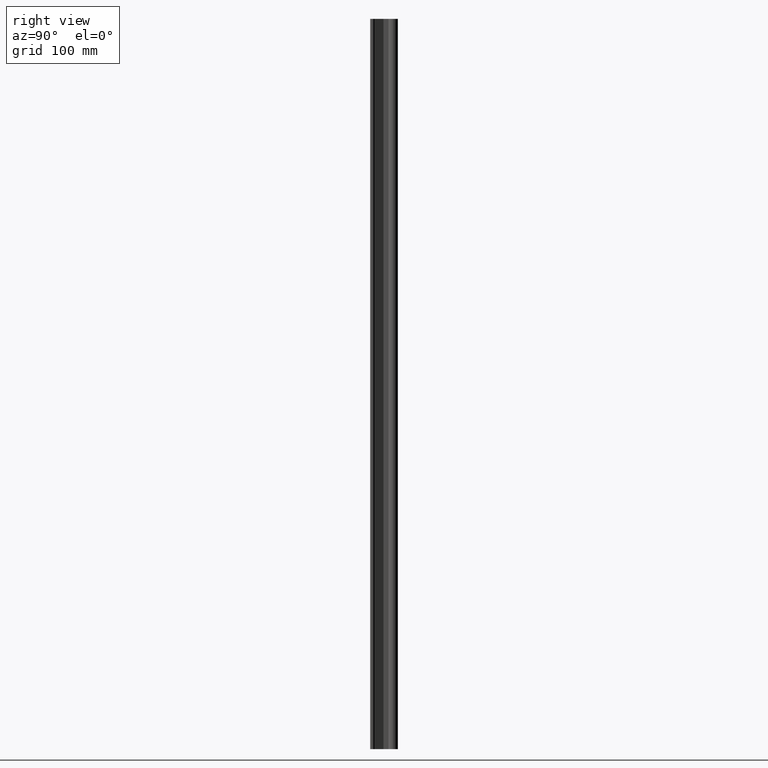
[diagram: clean part render]
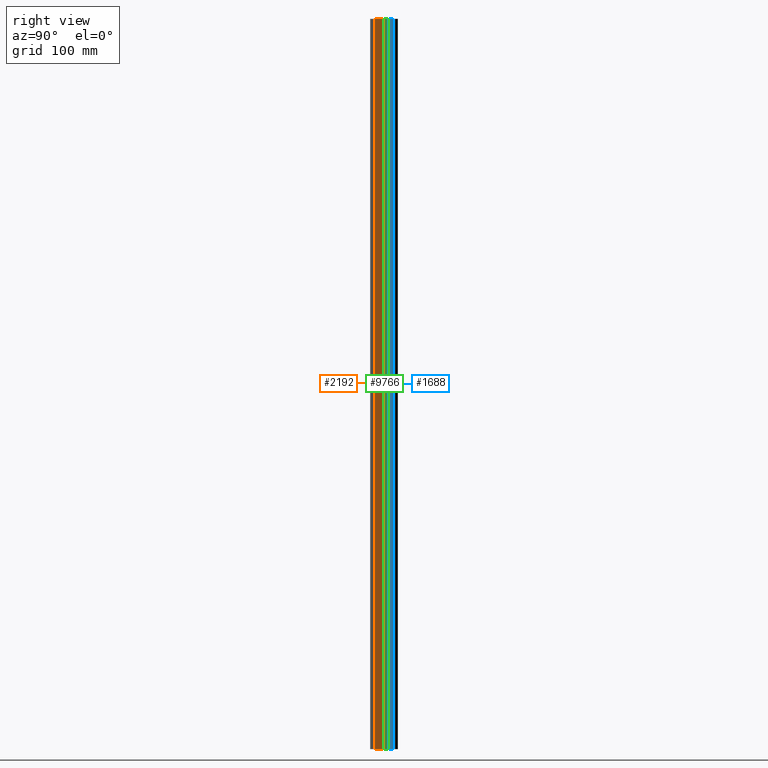
[diagram: same view with three faces highlighted in distinct colors, each labeled with its STEP entity id]
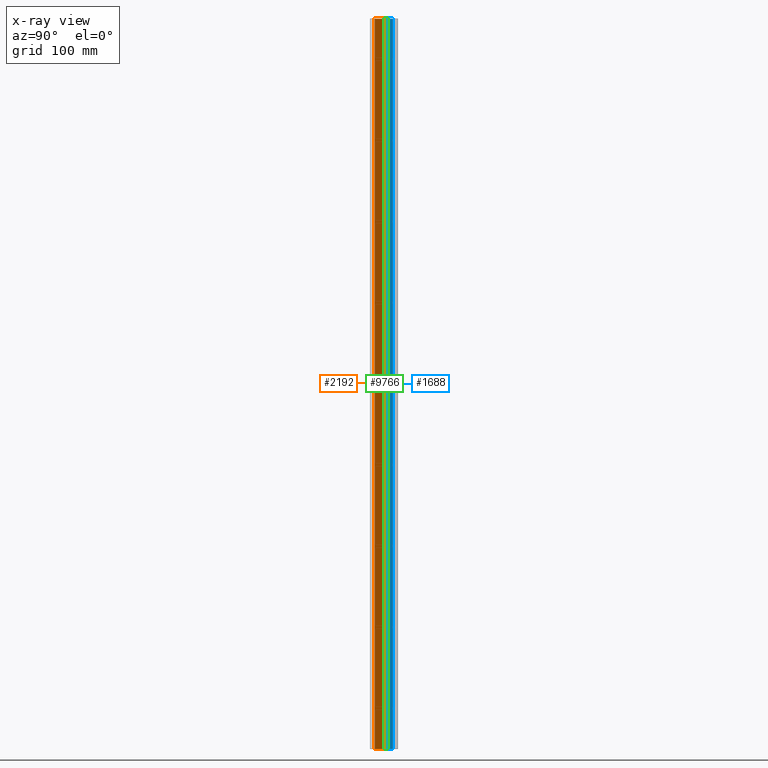
[diagram: x-ray of the same camera — body ghosted, the three highlighted faces saturated]
A machine part, right view with three faces highlighted in distinct colors.
The next image is the same camera in x-ray (body ghosted, the three faces saturated) — at least one of them is partly hidden behind the body in this view.
Their STEP definitions:

[orange] entity #2192 — the highlighted planar face has unit normal (0.9063, 0.4226, 0).
#60 = LINE ( 'NONE', #1791, #6049 ) ;
#299 = DIRECTION ( 'NONE',  ( 0.9063077870600825259, 0.4226182616904481937, -0.000000000000000000 ) ) ;
#1709 = EDGE_LOOP ( 'NONE', ( #10889, #7533, #2008, #4368 ) ) ;
#1791 = CARTESIAN_POINT ( 'NONE',  ( 0.3338457484000003084, 0.2221429043000001935, -37.75252057657289129 ) ) ;
#2008 = ORIENTED_EDGE ( 'NONE', *, *, #6501, .F. ) ;
#2192 = ADVANCED_FACE ( 'NONE', ( #4873 ), #6907, .T. ) ;
#2641 = CARTESIAN_POINT ( 'NONE',  ( 0.1358557633000001819, 0.6467337975999984945, 0.000000000000000000 ) ) ;
#3429 = CARTESIAN_POINT ( 'NONE',  ( 0.1358557633000001819, 0.6467337975999984945, -37.75252057657289129 ) ) ;
#3568 = DIRECTION ( 'NONE',  ( 0.4226182616904481937, -0.9063077870600825259, 0.000000000000000000 ) ) ;
#3975 = CARTESIAN_POINT ( 'NONE',  ( 0.3338457484000003084, 0.2221429043000001935, -36.00000000000000000 ) ) ;
#4305 = EDGE_CURVE ( 'NONE', #7968, #10848, #11652, .T. ) ;
#4368 = ORIENTED_EDGE ( 'NONE', *, *, #5869, .F. ) ;
#4462 = LINE ( 'NONE', #3429, #8344 ) ;
#4873 = FACE_OUTER_BOUND ( 'NONE', #1709, .T. ) ;
#4964 = VERTEX_POINT ( 'NONE', #6356 ) ;
#4977 = VECTOR ( 'NONE', #11763, 39.37007874015748854 ) ;
#5007 = AXIS2_PLACEMENT_3D ( 'NONE', #8550, #299, #11495 ) ;
#5311 = EDGE_CURVE ( 'NONE', #7968, #5357, #4462, .T. ) ;
#5357 = VERTEX_POINT ( 'NONE', #2641 ) ;
#5869 = EDGE_CURVE ( 'NONE', #10848, #4964, #60, .T. ) ;
#6049 = VECTOR ( 'NONE', #8423, 39.37007874015748143 ) ;
#6356 = CARTESIAN_POINT ( 'NONE',  ( 0.3338457484000003084, 0.2221429043000001935, 0.000000000000000000 ) ) ;
#6501 = EDGE_CURVE ( 'NONE', #4964, #5357, #7966, .T. ) ;
#6907 = PLANE ( 'NONE',  #5007 ) ;
#7533 = ORIENTED_EDGE ( 'NONE', *, *, #5311, .T. ) ;
#7966 = LINE ( 'NONE', #8018, #4977 ) ;
#7968 = VERTEX_POINT ( 'NONE', #11573 ) ;
#8018 = CARTESIAN_POINT ( 'NONE',  ( 0.3338457484000003084, 0.2221429043000001380, 0.000000000000000000 ) ) ;
#8193 = DIRECTION ( 'NONE',  ( 0.000000000000000000, 0.000000000000000000, 1.000000000000000000 ) ) ;
#8344 = VECTOR ( 'NONE', #8193, 39.37007874015748143 ) ;
#8423 = DIRECTION ( 'NONE',  ( 0.000000000000000000, 0.000000000000000000, 1.000000000000000000 ) ) ;
#8550 = CARTESIAN_POINT ( 'NONE',  ( 0.3338457484000003084, 0.2221429043000001380, -37.75252057657289129 ) ) ;
#9844 = CARTESIAN_POINT ( 'NONE',  ( 0.3338457484000003084, 0.2221429043000001380, -36.00000000000000000 ) ) ;
#9868 = VECTOR ( 'NONE', #3568, 39.37007874015748143 ) ;
#10848 = VERTEX_POINT ( 'NONE', #3975 ) ;
#10889 = ORIENTED_EDGE ( 'NONE', *, *, #4305, .F. ) ;
#11495 = DIRECTION ( 'NONE',  ( -0.4226182616904481937, 0.9063077870600825259, 0.000000000000000000 ) ) ;
#11573 = CARTESIAN_POINT ( 'NONE',  ( 0.1358557633000001819, 0.6467337975999984945, -36.00000000000000000 ) ) ;
#11652 = LINE ( 'NONE', #9844, #9868 ) ;
#11763 = DIRECTION ( 'NONE',  ( -0.4226182616904481937, 0.9063077870600825259, 0.000000000000000000 ) ) ;

[blue] entity #1688 — the highlighted cylindrical surface (edge-blend (fillet) strip) has radius 6.35 mm, axis along (0, 0, 1).
#34 = B_SPLINE_CURVE_WITH_KNOTS ( 'NONE', 3,
 ( #11532, #5136, #4409, #10753, #2479, #3266, #7978, #621, #7913, #10646, #2370, #5268, #6057, #551, #9729, #1637, #11596, #6179, #1454, #3332, #1580, #8944, #4349, #9786, #4227, #10698, #2424, #8885 ),
 .UNSPECIFIED., .F., .F.,
 ( 4, 2, 2, 2, 2, 2, 2, 2, 2, 2, 2, 2, 2, 4 ),
 ( 0.006233291675872124071, 0.007012246077378710835, 0.007401723278132004216, 0.007791200478885297598, 0.008570154880391653643, 0.008959632081144981719, 0.009349109281898311530, 0.009738586482651639606, 0.01012806368340496768, 0.01090701808491193088, 0.01129649528566529712, 0.01168597248641866163, 0.01207544968717202960, 0.01246492688792539411 ),
 .UNSPECIFIED. ) ;
#70 = CARTESIAN_POINT ( 'NONE',  ( 0.06231953888075642684, 0.8827811517732785385, -30.04798440163065010 ) ) ;
#71 = CARTESIAN_POINT ( 'NONE',  ( -0.06232975070473037449, 0.8827823061085769973, -9.952016090841690144 ) ) ;
#86 = CARTESIAN_POINT ( 'NONE',  ( -3.789845740549149170E-16, 0.8750000000000001110, -18.07799999999999940 ) ) ;
#95 = CARTESIAN_POINT ( 'NONE',  ( 0.03917239722044452838, 0.8780507865503895948, -10.06764137710435314 ) ) ;
#117 = CARTESIAN_POINT ( 'NONE',  ( -0.07800240562820992540, 0.8874802645617223540, -25.99491285531987472 ) ) ;
#134 = CARTESIAN_POINT ( 'NONE',  ( 0.2500000000000001110, 1.125000000000000222, -36.00000000000000000 ) ) ;
#142 = CARTESIAN_POINT ( 'NONE',  ( -0.06807901061803922627, 0.8844127860630973670, -17.96056957352279326 ) ) ;
#146 = CARTESIAN_POINT ( 'NONE',  ( 2.213917706696656308E-15, 0.8750000000000001110, -5.921999999999999709 ) ) ;
#171 = CARTESIAN_POINT ( 'NONE',  ( -0.02029898634861087084, 0.8757749623111571458, -26.07548527979439257 ) ) ;
#192 = ORIENTED_EDGE ( 'NONE', *, *, #7162, .T. ) ;
#202 = CARTESIAN_POINT ( 'NONE',  ( -0.05160429883667064926, 0.8803565653948269842, -18.05870721894697439 ) ) ;
#205 = CARTESIAN_POINT ( 'NONE',  ( -0.06811565724639985497, 0.8844239444435314512, -6.039335657649282041 ) ) ;
#269 = CARTESIAN_POINT ( 'NONE',  ( -0.06232975070472929202, 0.8827823061085765532, -29.95201609084168481 ) ) ;
#292 = CARTESIAN_POINT ( 'NONE',  ( -0.06232079077688824909, 0.8827815571590309496, -30.04798212059289497 ) ) ;
#302 = CARTESIAN_POINT ( 'NONE',  ( -0.07396476811180423272, 0.8861834210205004059, -14.02527790061238555 ) ) ;
#328 = VERTEX_POINT ( 'NONE', #7038 ) ;
#340 = CARTESIAN_POINT ( 'NONE',  ( -0.03470459755099613436, 0.8773749578586352849, -30.07004066855072111 ) ) ;
#345 = CARTESIAN_POINT ( 'NONE',  ( 0.07799994652476058277, 0.8874794570102669811, -1.994858760394038644 ) ) ;
#351 = B_SPLINE_CURVE_WITH_KNOTS ( 'NONE', 3,
 ( #3109, #5841, #6801, #11382, #7635, #340, #2081, #9513, #8543, #292, #1239, #6737, #1178, #4923, #4008, #5774, #9451, #4866, #3955, #11324, #269, #5634, #10337, #3027, #11122, #3936, #2848, #6607, #7619, #5747 ),
 .UNSPECIFIED., .F., .F.,
 ( 4, 2, 2, 2, 2, 2, 2, 2, 2, 2, 2, 2, 2, 2, 4 ),
 ( 1.213779246977069146E-17, 0.0003895807297420195723, 0.0007791614594840267846, 0.001168742189226033889, 0.001558322918968041209, 0.002337484378452054333, 0.002727065108194061654, 0.003116645837936068107, 0.003506226567678075862, 0.003895807297420081881, 0.004674968756904094788, 0.005064549486646102543, 0.005454130216388110297, 0.005843710946130117184, 0.006233291675872124071 ),
 .UNSPECIFIED. ) ;
#407 = CARTESIAN_POINT ( 'NONE',  ( 0.02529603958554999324, 0.8762378816398047610, -2.073960228900075808 ) ) ;
#409 = CARTESIAN_POINT ( 'NONE',  ( -0.07547898097189637001, 0.8866640281602993223, -13.97967537472681876 ) ) ;
#474 = B_SPLINE_CURVE_WITH_KNOTS ( 'NONE', 3,
 ( #9837, #2357, #2411, #10804, #486, #6937, #667, #2531, #5122, #1564, #8800, #6228, #5252, #4335, #4157, #10566, #11645, #538, #1495, #11468, #8016, #9905, #8691, #5180, #5983, #11519, #3199, #10738, #10632, #11579 ),
 .UNSPECIFIED., .F., .F.,
 ( 4, 2, 2, 2, 2, 2, 2, 2, 2, 2, 2, 2, 2, 2, 4 ),
 ( 1.213779246977069146E-17, 0.0003895807297420195723, 0.0007791614594840267846, 0.001168742189226033889, 0.001558322918968041209, 0.002337484378452054333, 0.002727065108194061654, 0.003116645837936068107, 0.003506226567678075862, 0.003895807297420081881, 0.004674968756904094788, 0.005064549486646102543, 0.005454130216388110297, 0.005843710946130117184, 0.006233291675872124071 ),
 .UNSPECIFIED. ) ;
#478 = CARTESIAN_POINT ( 'NONE',  ( -0.07748692582057530032, 0.8873092589766967686, -21.98970712440920394 ) ) ;
#481 = CARTESIAN_POINT ( 'NONE',  ( 0.07800005346680394247, 0.8874794921292503691, -14.00513961688525022 ) ) ;
#486 = CARTESIAN_POINT ( 'NONE',  ( -0.02527150068128009366, 0.8762352077965906982, -34.07396928819127879 ) ) ;
#504 = CARTESIAN_POINT ( 'NONE',  ( 0.01022138879153923832, 0.8750000000000001110, -9.922000000000000597 ) ) ;
#522 = VERTEX_POINT ( 'NONE', #7332 ) ;
#528 = CARTESIAN_POINT ( 'NONE',  ( -0.06807901061803904585, 0.8844127860630971449, -21.96056957352278616 ) ) ;
#532 = CARTESIAN_POINT ( 'NONE',  ( 0.04761907601107873145, 0.8795395870466513610, -14.06198593550492504 ) ) ;
#538 = CARTESIAN_POINT ( 'NONE',  ( -0.07547898097189699451, 0.8866640281602995444, -33.97967537472681698 ) ) ;
#551 = CARTESIAN_POINT ( 'NONE',  ( 0.07800005346680409513, 0.8874794921292501471, -22.00513961688523423 ) ) ;
#555 = CARTESIAN_POINT ( 'NONE',  ( 0.03921498086539857569, 0.8780576707971254891, -9.932383816771762852 ) ) ;
#559 = VERTEX_POINT ( 'NONE', #3654 ) ;
#580 = EDGE_CURVE ( 'NONE', #4969, #8097, #351, .T. ) ;
#594 = CARTESIAN_POINT ( 'NONE',  ( 0.03917239722044454225, 0.8780507865503899279, -14.06764137710435669 ) ) ;
#605 = CARTESIAN_POINT ( 'NONE',  ( -0.01028417825572612229, 0.8751612441285566701, -10.07748749570106739 ) ) ;
#611 = CARTESIAN_POINT ( 'NONE',  ( 0.06806878809041683187, 0.8844097834491140286, -5.960548605632476793 ) ) ;
#621 = CARTESIAN_POINT ( 'NONE',  ( 0.06235218895622878649, 0.8827879426489952941, -21.95204324745742497 ) ) ;
#657 = CARTESIAN_POINT ( 'NONE',  ( 0.07547573047490926945, 0.8866630057056100744, -13.97966718578037337 ) ) ;
#658 = CARTESIAN_POINT ( 'NONE',  ( 0.02054169543680400833, 0.8756652858451184906, -17.92406707735932514 ) ) ;
#667 = CARTESIAN_POINT ( 'NONE',  ( -0.03917314466049597044, 0.8780508288026278585, -34.06764135419696515 ) ) ;
#672 = CARTESIAN_POINT ( 'NONE',  ( 0.07799994652476063828, 0.8874794570102670921, -5.994858760394039976 ) ) ;
#690 = CARTESIAN_POINT ( 'NONE',  ( -0.06232975070473011081, 0.8827823061085769973, -1.952016090841690144 ) ) ;
#711 = CARTESIAN_POINT ( 'NONE',  ( 0.07547573047490926945, 0.8866630057056100744, -17.97966718578037515 ) ) ;
#746 = CARTESIAN_POINT ( 'NONE',  ( -0.03463712429092701689, 0.8773658347640002075, -1.929927362662186008 ) ) ;
#782 = CARTESIAN_POINT ( 'NONE',  ( -0.06811565724640089581, 0.8844239444435320063, -10.03933565764928382 ) ) ;
#797 = CIRCLE ( 'NONE', #8498, 0.2500000000000001110 ) ;
#834 = CARTESIAN_POINT ( 'NONE',  ( 2.213917706696159326E-15, 0.8750000000000001110, -9.922000000000000597 ) ) ;
#836 = CARTESIAN_POINT ( 'NONE',  ( 0.06806878809041784495, 0.8844097834491142507, -17.96054860563247857 ) ) ;
#849 = CARTESIAN_POINT ( 'NONE',  ( 0.04761907601107851634, 0.8795395870466511390, -6.061985935504921486 ) ) ;
#874 = CARTESIAN_POINT ( 'NONE',  ( 0.01028783097141230257, 0.8751612583494134956, -26.07748747400647105 ) ) ;
#880 = CARTESIAN_POINT ( 'NONE',  ( -0.04762844379137702588, 0.8795413277969736932, -26.06197918523345791 ) ) ;
#887 = CARTESIAN_POINT ( 'NONE',  ( 0.03465069891692553611, 0.8773676731561541597, -17.92993380585037855 ) ) ;
#920 = CARTESIAN_POINT ( 'NONE',  ( -0.03470459755099533639, 0.8773749578586351738, -2.070040668550719332 ) ) ;
#961 = CARTESIAN_POINT ( 'NONE',  ( 0.03471035892563602288, 0.8773759459724902454, -6.070037104886758961 ) ) ;
#972 = CARTESIAN_POINT ( 'NONE',  ( -0.02029898634861100615, 0.8757749623111571458, -6.075485279794388127 ) ) ;
#1022 = FACE_BOUND ( 'NONE', #9765, .T. ) ;
#1028 = CARTESIAN_POINT ( 'NONE',  ( 0.02031614091366462649, 0.8757762236181687587, -6.075481140110469802 ) ) ;
#1034 = CARTESIAN_POINT ( 'NONE',  ( -0.07749518699012482303, 0.8873119349522810007, -18.01024377797443066 ) ) ;
#1043 = CARTESIAN_POINT ( 'NONE',  ( 0.02529603958554938262, 0.8762378816398045389, -10.07396022890007536 ) ) ;
#1061 = CARTESIAN_POINT ( 'NONE',  ( -0.07396476811180348332, 0.8861834210205001838, -26.02527790061237667 ) ) ;
#1076 = CARTESIAN_POINT ( 'NONE',  ( -0.2500000000000001110, 1.125000000000000222, -36.00000000000000000 ) ) ;
#1113 = CARTESIAN_POINT ( 'NONE',  ( -0.01028417825572587249, 0.8751612441285568922, -26.07748749570105673 ) ) ;
#1128 = DIRECTION ( 'NONE',  ( 0.000000000000000000, 0.000000000000000000, 1.000000000000000000 ) ) ;
#1131 = DIRECTION ( 'NONE',  ( 0.000000000000000000, 0.000000000000000000, 1.000000000000000000 ) ) ;
#1144 = CARTESIAN_POINT ( 'NONE',  ( -0.06232079077688682661, 0.8827815571590306165, -18.04798212059289853 ) ) ;
#1159 = B_SPLINE_CURVE_WITH_KNOTS ( 'NONE', 3,
 ( #8015, #11695, #2591, #2530, #6098, #11823, #7234, #6998, #10686, #6459, #9294, #10980, #2829, #6516, #9218, #4575, #6644, #2044, #70, #11163, #4706, #7416, #2706, #4820, #10135, #7539, #3742, #7290 ),
 .UNSPECIFIED., .F., .F.,
 ( 4, 2, 2, 2, 2, 2, 2, 2, 2, 2, 2, 2, 2, 4 ),
 ( 0.006233291675872124071, 0.007012246077378854817, 0.007401723278132219322, 0.007791200478885584695, 0.008570154880392545291, 0.008959632081145875102, 0.009349109281899204912, 0.009738586482652534723, 0.01012806368340586453, 0.01090701808491221711, 0.01129649528566551223, 0.01168597248641880561, 0.01207544968717209899, 0.01246492688792539411 ),
 .UNSPECIFIED. ) ;
#1178 = CARTESIAN_POINT ( 'NONE',  ( -0.07547983674979563684, 0.8866642819110246432, -30.02032813906996012 ) ) ;
#1189 = VERTEX_POINT ( 'NONE', #3985 ) ;
#1214 = CARTESIAN_POINT ( 'NONE',  ( -0.03920491261322281429, 0.8780561055494338074, -5.932378193713815584 ) ) ;
#1239 = CARTESIAN_POINT ( 'NONE',  ( -0.06811565724639967456, 0.8844239444435313402, -30.03933565764927849 ) ) ;
#1259 = CARTESIAN_POINT ( 'NONE',  ( 0.04764718445361525861, 0.8795451681264810917, -13.93803623016414228 ) ) ;
#1297 = CARTESIAN_POINT ( 'NONE',  ( 0.03917239722044458389, 0.8780507865503900389, -2.067641377104351363 ) ) ;
#1307 = EDGE_CURVE ( 'NONE', #11137, #9920, #3074, .T. ) ;
#1328 = ORIENTED_EDGE ( 'NONE', *, *, #580, .T. ) ;
#1360 = CARTESIAN_POINT ( 'NONE',  ( -0.03463712429092664913, 0.8773658347640002075, -13.92992736266218401 ) ) ;
#1420 = CARTESIAN_POINT ( 'NONE',  ( 0.07547573047490928333, 0.8866630057056101855, -1.979667185780374483 ) ) ;
#1422 = CARTESIAN_POINT ( 'NONE',  ( -0.01028663790876568028, 0.8751606503296343043, -13.92251047910223072 ) ) ;
#1454 = CARTESIAN_POINT ( 'NONE',  ( 0.06231953888075641296, 0.8827811517732783164, -22.04798440163064654 ) ) ;
#1459 = CARTESIAN_POINT ( 'NONE',  ( 0.04764718445361525861, 0.8795451681264806476, -9.938036230164138729 ) ) ;
#1473 = CARTESIAN_POINT ( 'NONE',  ( -4.921704973486029762E-16, 0.8750000000000001110, -34.07799999999999585 ) ) ;
#1484 = CARTESIAN_POINT ( 'NONE',  ( -0.07547983674979563684, 0.8866642819110246432, -22.02032813906996367 ) ) ;
#1495 = CARTESIAN_POINT ( 'NONE',  ( -0.07399434787557167270, 0.8861923864663597827, -33.97479654711759167 ) ) ;
#1501 = CARTESIAN_POINT ( 'NONE',  ( 0.04764718445361500188, 0.8795451681264805366, -5.938036230164141394 ) ) ;
#1535 = CARTESIAN_POINT ( 'NONE',  ( 0.07799994652476045787, 0.8874794570102670921, -33.99485876039404531 ) ) ;
#1554 = CARTESIAN_POINT ( 'NONE',  ( 0.005187186483511317669, 0.8750000000000003331, -14.07800000000000296 ) ) ;
#1564 = CARTESIAN_POINT ( 'NONE',  ( -0.06232079077688824909, 0.8827815571590309496, -34.04798212059289853 ) ) ;
#1580 = CARTESIAN_POINT ( 'NONE',  ( 0.04761907601107864124, 0.8795395870466511390, -22.06198593550492149 ) ) ;
#1591 = CARTESIAN_POINT ( 'NONE',  ( -0.07799757705483373327, 0.8874786788938041626, -2.005160649025025332 ) ) ;
#1595 = ORIENTED_EDGE ( 'NONE', *, *, #7304, .T. ) ;
#1600 = CARTESIAN_POINT ( 'NONE',  ( 0.05155376896670607612, 0.8803454926763307764, -33.94124525295056571 ) ) ;
#1601 = CARTESIAN_POINT ( 'NONE',  ( 0.07749688441172644660, 0.8873125097882688106, -26.01022446488824613 ) ) ;
#1617 = CARTESIAN_POINT ( 'NONE',  ( 0.07800005346680394247, 0.8874794921292503691, -18.00513961688525910 ) ) ;
#1637 = CARTESIAN_POINT ( 'NONE',  ( 0.07549072539660189873, 0.8866677519181023204, -22.02028440669258202 ) ) ;
#1646 = CARTESIAN_POINT ( 'NONE',  ( -0.07399434787557171433, 0.8861923864663600048, -1.974796547117605661 ) ) ;
#1654 = CARTESIAN_POINT ( 'NONE',  ( 0.03471035892563355263, 0.8773759459724899124, -26.07003710488675807 ) ) ;
#1669 = CARTESIAN_POINT ( 'NONE',  ( 0.07799994652476065216, 0.8874794570102670921, -17.99485876039403465 ) ) ;
#1677 = CARTESIAN_POINT ( 'NONE',  ( -0.03920491261322269633, 0.8780561055494339184, -9.932378193713816472 ) ) ;
#1688 = ADVANCED_FACE ( 'NONE', ( #5732, #9296, #3744, #1022, #2831, #9355, #8382, #11105, #7605, #5680 ), #1990, .T. ) ;
#1703 = CARTESIAN_POINT ( 'NONE',  ( -0.005188565316905607676, 0.8750000000000003331, -2.078000000000000291 ) ) ;
#1712 = CARTESIAN_POINT ( 'NONE',  ( 0.03465069891692666715, 0.8773676731561543818, -25.92993380585037499 ) ) ;
#1730 = ORIENTED_EDGE ( 'NONE', *, *, #6707, .F. ) ;
#1735 = B_SPLINE_CURVE_WITH_KNOTS ( 'NONE', 3,
 ( #86, #3931, #9309, #4656, #1816, #8262, #5742, #3754, #202, #1144, #8392, #7370, #1867, #1034, #11061, #2055, #6600, #1935, #2785, #142, #10332, #6655, #5689, #5501, #10208, #2972, #4718, #4768, #7551, #9365 ),
 .UNSPECIFIED., .F., .F.,
 ( 4, 2, 2, 2, 2, 2, 2, 2, 2, 2, 2, 2, 2, 2, 4 ),
 ( 9.346427983603432115E-18, 0.0003895807297420916717, 0.0007791614594841740193, 0.001168742189226255933, 0.001558322918968337847, 0.002337484378452504060, 0.002727065108194510080, 0.003116645837936516533, 0.003506226567678523420, 0.003895807297420529440, 0.004674968756904391426, 0.005064549486646322853, 0.005454130216388254279, 0.005843710946130185706, 0.006233291675872117132 ),
 .UNSPECIFIED. ) ;
#1740 = CARTESIAN_POINT ( 'NONE',  ( -0.01028663790876567161, 0.8751606503296343043, -9.922510479102232495 ) ) ;
#1773 = CARTESIAN_POINT ( 'NONE',  ( -0.02523737676779040998, 0.8762320660029592201, -1.926020410270788297 ) ) ;
#1783 = EDGE_CURVE ( 'NONE', #522, #2014, #11528, .T. ) ;
#1788 = CARTESIAN_POINT ( 'NONE',  ( -0.03917314466049597044, 0.8780508288026278585, -26.06764135419695805 ) ) ;
#1796 = CARTESIAN_POINT ( 'NONE',  ( 0.07748070542580057229, 0.8873072381692589383, -17.98966803447880380 ) ) ;
#1816 = CARTESIAN_POINT ( 'NONE',  ( -0.02527150068127932692, 0.8762352077965905872, -18.07396928819127879 ) ) ;
#1835 = CARTESIAN_POINT ( 'NONE',  ( -4.921704973486029762E-16, 0.8750000000000001110, -26.07799999999999585 ) ) ;
#1867 = CARTESIAN_POINT ( 'NONE',  ( -0.07547983674979566460, 0.8866642819110247542, -18.02032813906996722 ) ) ;
#1927 = CARTESIAN_POINT ( 'NONE',  ( 0.05159897899607303329, 0.8803554226899560353, -6.058712028564026575 ) ) ;
#1935 = CARTESIAN_POINT ( 'NONE',  ( -0.07547898097189637001, 0.8866640281602993223, -17.97967537472681343 ) ) ;
#1938 = CARTESIAN_POINT ( 'NONE',  ( -0.04762844379137548545, 0.8795413277969731380, -6.061979185233457024 ) ) ;
#1955 = DIRECTION ( 'NONE',  ( 0.000000000000000000, 0.000000000000000000, 1.000000000000000000 ) ) ;
#1965 = ORIENTED_EDGE ( 'NONE', *, *, #2155, .T. ) ;
#1972 = CARTESIAN_POINT ( 'NONE',  ( -0.005112052896395434184, 0.8750000000000000000, -25.92199999999998994 ) ) ;
#1990 = CYLINDRICAL_SURFACE ( 'NONE', #4827, 0.2500000000000001110 ) ;
#1994 = CARTESIAN_POINT ( 'NONE',  ( 0.05155376896670632592, 0.8803454926763307764, -13.94124525295055861 ) ) ;
#2014 = VERTEX_POINT ( 'NONE', #6571 ) ;
#2032 = VERTEX_POINT ( 'NONE', #5783 ) ;
#2044 = CARTESIAN_POINT ( 'NONE',  ( 0.06811335514283112236, 0.8844231649958610442, -30.03934550995828445 ) ) ;
#2055 = CARTESIAN_POINT ( 'NONE',  ( -0.07800240562820978663, 0.8874802645617220209, -17.99491285531988183 ) ) ;
#2081 = CARTESIAN_POINT ( 'NONE',  ( -0.03917314466049597044, 0.8780508288026278585, -30.06764135419696515 ) ) ;
#2126 = CARTESIAN_POINT ( 'NONE',  ( -4.921704973486029762E-16, 0.8750000000000001110, -26.07799999999999585 ) ) ;
#2155 = EDGE_CURVE ( 'NONE', #6243, #2855, #8069, .T. ) ;
#2245 = B_SPLINE_CURVE_WITH_KNOTS ( 'NONE', 3,
 ( #5953, #3181, #11497, #9523, #9633, #10604, #8602, #3910, #3229, #7702, #10364, #302, #2330, #6691, #3056, #4140, #11450, #409, #6863, #6018, #9693, #7818, #6812, #2268, #1360, #7766, #4991, #1422, #5107, #5052 ),
 .UNSPECIFIED., .F., .F.,
 ( 4, 2, 2, 2, 2, 2, 2, 2, 2, 2, 2, 2, 2, 2, 4 ),
 ( 9.346427983603432115E-18, 0.0003895807297420916717, 0.0007791614594841740193, 0.001168742189226255933, 0.001558322918968337847, 0.002337484378452504060, 0.002727065108194510080, 0.003116645837936516533, 0.003506226567678523420, 0.003895807297420529440, 0.004674968756904391426, 0.005064549486646322853, 0.005454130216388254279, 0.005843710946130185706, 0.006233291675872117132 ),
 .UNSPECIFIED. ) ;
#2268 = CARTESIAN_POINT ( 'NONE',  ( -0.03920491261322270327, 0.8780561055494338074, -13.93237819371381470 ) ) ;
#2328 = CARTESIAN_POINT ( 'NONE',  ( 0.01028783097141275880, 0.8751612583494132735, -2.077487474006472379 ) ) ;
#2330 = CARTESIAN_POINT ( 'NONE',  ( -0.07547983674979566460, 0.8866642819110247542, -14.02032813906996722 ) ) ;
#2345 = CARTESIAN_POINT ( 'NONE',  ( -0.02037021677938372077, 0.8757800773783559478, -21.92453149639225529 ) ) ;
#2348 = CARTESIAN_POINT ( 'NONE',  ( 0.02529603958554936527, 0.8762378816398045389, -14.07396022890007536 ) ) ;
#2357 = CARTESIAN_POINT ( 'NONE',  ( -0.005188565316905643238, 0.8750000000000003331, -34.07800000000000296 ) ) ;
#2370 = CARTESIAN_POINT ( 'NONE',  ( 0.07547573047490969966, 0.8866630057056101855, -21.97966718578037870 ) ) ;
#2388 = CARTESIAN_POINT ( 'NONE',  ( 0.01022138879153921751, 0.8750000000000003331, -1.922000000000000153 ) ) ;
#2411 = CARTESIAN_POINT ( 'NONE',  ( -0.01028417825572587249, 0.8751612441285568922, -34.07748749570105673 ) ) ;
#2424 = CARTESIAN_POINT ( 'NONE',  ( 0.005187186483511348027, 0.8750000000000001110, -22.07800000000000296 ) ) ;
#2442 = ORIENTED_EDGE ( 'NONE', *, *, #4581, .T. ) ;
#2464 = CARTESIAN_POINT ( 'NONE',  ( -0.04762844379137554790, 0.8795413277969735821, -10.06197918523345969 ) ) ;
#2479 = CARTESIAN_POINT ( 'NONE',  ( 0.03921498086540099043, 0.8780576707971258221, -21.93238381677176463 ) ) ;
#2503 = CARTESIAN_POINT ( 'NONE',  ( 0.07397325310813056276, 0.8861860169568039902, -26.02525534399435259 ) ) ;
#2530 = CARTESIAN_POINT ( 'NONE',  ( 0.03465069891692666021, 0.8773676731561541597, -29.92993380585037499 ) ) ;
#2531 = CARTESIAN_POINT ( 'NONE',  ( -0.04762844379137702588, 0.8795413277969736932, -34.06197918523346146 ) ) ;
#2557 = CARTESIAN_POINT ( 'NONE',  ( 3.122475928760415725E-17, 0.8750000000000001110, -2.078000000000000291 ) ) ;
#2591 = CARTESIAN_POINT ( 'NONE',  ( 0.02054169543680528162, 0.8756652858451182686, -29.92406707735931093 ) ) ;
#2592 = CARTESIAN_POINT ( 'NONE',  ( -0.07547898097189638389, 0.8866640281602995444, -9.979675374726822312 ) ) ;
#2618 = CARTESIAN_POINT ( 'NONE',  ( 0.06811335514283108072, 0.8844231649958608221, -34.03934550995827379 ) ) ;
#2633 = CARTESIAN_POINT ( 'NONE',  ( 0.03921498086539857569, 0.8780576707971256001, -17.93238381677176463 ) ) ;
#2688 = CARTESIAN_POINT ( 'NONE',  ( -0.03463712429092632994, 0.8773658347640002075, -25.92992736266218756 ) ) ;
#2696 = CARTESIAN_POINT ( 'NONE',  ( 0.005187186483511317669, 0.8750000000000003331, -18.07800000000000296 ) ) ;
#2706 = CARTESIAN_POINT ( 'NONE',  ( 0.03471035892563355957, 0.8773759459724900234, -30.07003710488676518 ) ) ;
#2707 = CARTESIAN_POINT ( 'NONE',  ( -0.07547983674979566460, 0.8866642819110247542, -10.02032813906996900 ) ) ;
#2730 = CARTESIAN_POINT ( 'NONE',  ( 0.03471035892563541225, 0.8773759459724902454, -10.07003710488676163 ) ) ;
#2745 = CARTESIAN_POINT ( 'NONE',  ( 0.06231953888075641296, 0.8827811517732783164, -26.04798440163064299 ) ) ;
#2753 = CARTESIAN_POINT ( 'NONE',  ( -4.921704973486029762E-16, 0.8750000000000001110, -26.07799999999999585 ) ) ;
#2771 = CARTESIAN_POINT ( 'NONE',  ( -0.07800240562820978663, 0.8874802645617219099, -9.994912855319883604 ) ) ;
#2785 = CARTESIAN_POINT ( 'NONE',  ( -0.07399434787557145066, 0.8861923864663597827, -17.97479654711760588 ) ) ;
#2814 = CARTESIAN_POINT ( 'NONE',  ( -0.01028663790876502802, 0.8751606503296346373, -25.92251047910222894 ) ) ;
#2829 = CARTESIAN_POINT ( 'NONE',  ( 0.07799994652476045787, 0.8874794570102670921, -29.99485876039403465 ) ) ;
#2831 = FACE_BOUND ( 'NONE', #7791, .T. ) ;
#2845 = CARTESIAN_POINT ( 'NONE',  ( -0.01028417825572599392, 0.8751612441285564481, -6.077487495701064724 ) ) ;
#2848 = CARTESIAN_POINT ( 'NONE',  ( -0.02037021677938372077, 0.8757800773783559478, -29.92453149639224819 ) ) ;
#2852 = CARTESIAN_POINT ( 'NONE',  ( 0.01028783097141219849, 0.8751612583494137176, -10.07748747400647460 ) ) ;
#2855 = VERTEX_POINT ( 'NONE', #8631 ) ;
#2872 = CARTESIAN_POINT ( 'NONE',  ( -0.07749518699012483691, 0.8873119349522811117, -26.01024377797443421 ) ) ;
#2894 = DIRECTION ( 'NONE',  ( 1.000000000000000000, 0.000000000000000000, 0.000000000000000000 ) ) ;
#2909 = DIRECTION ( 'NONE',  ( 1.000000000000000000, 0.000000000000000000, 0.000000000000000000 ) ) ;
#2912 = EDGE_LOOP ( 'NONE', ( #1328, #6051 ) ) ;
#2941 = CARTESIAN_POINT ( 'NONE',  ( -0.02037021677938372077, 0.8757800773783559478, -25.92453149639224819 ) ) ;
#2972 = CARTESIAN_POINT ( 'NONE',  ( -0.02523737676779012201, 0.8762320660029589980, -17.92602041027078386 ) ) ;
#3021 = EDGE_CURVE ( 'NONE', #2032, #328, #5644, .T. ) ;
#3025 = CARTESIAN_POINT ( 'NONE',  ( -0.02527150068127942406, 0.8762352077965909203, -6.073969288191277904 ) ) ;
#3027 = CARTESIAN_POINT ( 'NONE',  ( -0.03920491261322506249, 0.8780561055494341405, -29.93237819371381647 ) ) ;
#3056 = CARTESIAN_POINT ( 'NONE',  ( -0.07799757705483378878, 0.8874786788938043847, -14.00516064902502578 ) ) ;
#3074 = CIRCLE ( 'NONE', #7303, 0.2500000000000001110 ) ;
#3109 = CARTESIAN_POINT ( 'NONE',  ( -4.921704973486029762E-16, 0.8750000000000001110, -30.07799999999999585 ) ) ;
#3120 = CARTESIAN_POINT ( 'NONE',  ( 0.03465069891692603571, 0.8773676731561540487, -1.929933805850380102 ) ) ;
#3167 = CARTESIAN_POINT ( 'NONE',  ( 0.02054169543680443508, 0.8756652858451180466, -5.924067077359320699 ) ) ;
#3181 = CARTESIAN_POINT ( 'NONE',  ( -0.005188565316905642370, 0.8750000000000002220, -14.07799999999999763 ) ) ;
#3199 = CARTESIAN_POINT ( 'NONE',  ( -0.02037021677938372077, 0.8757800773783559478, -33.92453149639224819 ) ) ;
#3229 = CARTESIAN_POINT ( 'NONE',  ( -0.05160429883667064926, 0.8803565653948269842, -14.05870721894697439 ) ) ;
#3239 = CARTESIAN_POINT ( 'NONE',  ( -0.03470459755099613436, 0.8773749578586352849, -22.07004066855071045 ) ) ;
#3242 = CARTESIAN_POINT ( 'NONE',  ( 0.03471035892563541919, 0.8773759459724903564, -14.07003710488676518 ) ) ;
#3266 = CARTESIAN_POINT ( 'NONE',  ( 0.04764718445361741661, 0.8795451681264812027, -21.93803623016414761 ) ) ;
#3286 = EDGE_LOOP ( 'NONE', ( #5137, #6412 ) ) ;
#3287 = CARTESIAN_POINT ( 'NONE',  ( 2.213917706804984660E-15, 0.8750000000000001110, -33.92199999999999704 ) ) ;
#3332 = CARTESIAN_POINT ( 'NONE',  ( 0.05159897899607446964, 0.8803554226899560353, -22.05871202856402391 ) ) ;
#3337 = CARTESIAN_POINT ( 'NONE',  ( 0.02054169543680401527, 0.8756652858451183796, -9.924067077359323363 ) ) ;
#3423 = CARTESIAN_POINT ( 'NONE',  ( 0.01028783097141220543, 0.8751612583494136066, -18.07748747400647460 ) ) ;
#3430 = CARTESIAN_POINT ( 'NONE',  ( -0.02029898634861109635, 0.8757749623111567017, -10.07548527979438724 ) ) ;
#3472 = CARTESIAN_POINT ( 'NONE',  ( 0.07800005346680409513, 0.8874794921292501471, -34.00513961688523779 ) ) ;
#3473 = CARTESIAN_POINT ( 'NONE',  ( 0.05155376896670607612, 0.8803454926763307764, -25.94124525295055861 ) ) ;
#3524 = B_SPLINE_CURVE_WITH_KNOTS ( 'NONE', 3,
 ( #5343, #8174, #9878, #1712, #5406, #8115, #3473, #5521, #7155, #5288, #7328, #9142, #10775, #10118, #1601, #6439, #2503, #9937, #2745, #11734, #8962, #11855, #1654, #9018, #3534, #874, #10057, #1835 ),
 .UNSPECIFIED., .F., .F.,
 ( 4, 2, 2, 2, 2, 2, 2, 2, 2, 2, 2, 2, 2, 4 ),
 ( 0.006233291675872124071, 0.007012246077378710835, 0.007401723278132004216, 0.007791200478885297598, 0.008570154880391653643, 0.008959632081144981719, 0.009349109281898311530, 0.009738586482651639606, 0.01012806368340496768, 0.01090701808491193088, 0.01129649528566529712, 0.01168597248641866163, 0.01207544968717202960, 0.01246492688792539411 ),
 .UNSPECIFIED. ) ;
#3534 = CARTESIAN_POINT ( 'NONE',  ( 0.02031614091366408525, 0.8757762236181683146, -26.07548114011047247 ) ) ;
#3612 = CARTESIAN_POINT ( 'NONE',  ( -0.07399434787557149229, 0.8861923864663600048, -9.974796547117607659 ) ) ;
#3654 = CARTESIAN_POINT ( 'NONE',  ( 2.213917706696656308E-15, 0.8750000000000001110, -5.921999999999999709 ) ) ;
#3659 = CARTESIAN_POINT ( 'NONE',  ( -0.005188565316905643238, 0.8750000000000003331, -26.07799999999999940 ) ) ;
#3699 = CARTESIAN_POINT ( 'NONE',  ( -0.05160429883667163459, 0.8803565653948270953, -6.058707218946969952 ) ) ;
#3726 = CARTESIAN_POINT ( 'NONE',  ( -0.02523737676778966751, 0.8762320660029586650, -25.92602041027077675 ) ) ;
#3742 = CARTESIAN_POINT ( 'NONE',  ( 0.005187186483511340221, 0.8750000000000003331, -30.07800000000000296 ) ) ;
#3743 = CARTESIAN_POINT ( 'NONE',  ( -0.005112052896395349183, 0.8750000000000002220, -9.922000000000002373 ) ) ;
#3744 = FACE_BOUND ( 'NONE', #6064, .T. ) ;
#3754 = CARTESIAN_POINT ( 'NONE',  ( -0.04762844379137556178, 0.8795413277969735821, -18.06197918523345436 ) ) ;
#3757 = CARTESIAN_POINT ( 'NONE',  ( -0.03917314466049437449, 0.8780508288026275254, -6.067641354196963377 ) ) ;
#3763 = CARTESIAN_POINT ( 'NONE',  ( 0.04761907601107873839, 0.8795395870466514721, -10.06198593550492859 ) ) ;
#3782 = CARTESIAN_POINT ( 'NONE',  ( -0.05160429883667220358, 0.8803565653948269842, -26.05870721894696729 ) ) ;
#3800 = CARTESIAN_POINT ( 'NONE',  ( 0.02054169543680400833, 0.8756652858451184906, -13.92406707735932336 ) ) ;
#3801 = ORIENTED_EDGE ( 'NONE', *, *, #8282, .T. ) ;
#3872 = CARTESIAN_POINT ( 'NONE',  ( -0.07749518699012490630, 0.8873119349522807786, -6.010243777974426216 ) ) ;
#3910 = CARTESIAN_POINT ( 'NONE',  ( -0.04762844379137556178, 0.8795413277969735821, -14.06197918523345969 ) ) ;
#3931 = CARTESIAN_POINT ( 'NONE',  ( -0.005188565316905642370, 0.8750000000000002220, -18.07799999999999940 ) ) ;
#3936 = CARTESIAN_POINT ( 'NONE',  ( -0.02523737676778966751, 0.8762320660029586650, -29.92602041027079096 ) ) ;
#3955 = CARTESIAN_POINT ( 'NONE',  ( -0.07399434787557167270, 0.8861923864663597827, -29.97479654711759878 ) ) ;
#3973 = CARTESIAN_POINT ( 'NONE',  ( 0.000000000000000000, 1.125000000000000222, -36.00000000000000000 ) ) ;
#3985 = CARTESIAN_POINT ( 'NONE',  ( 0.2500000000000001110, 1.125000000000000222, -36.00000000000000000 ) ) ;
#4008 = CARTESIAN_POINT ( 'NONE',  ( -0.07799757705483363612, 0.8874786788938041626, -30.00516064902502578 ) ) ;
#4030 = CARTESIAN_POINT ( 'NONE',  ( -0.005188565316905643238, 0.8750000000000003331, -22.07799999999999940 ) ) ;
#4094 = CARTESIAN_POINT ( 'NONE',  ( -0.005112052896395434184, 0.8750000000000000000, -21.92200000000000770 ) ) ;
#4102 = VERTEX_POINT ( 'NONE', #2126 ) ;
#4132 = CARTESIAN_POINT ( 'NONE',  ( -4.921704973486029762E-16, 0.8750000000000001110, -34.07799999999999585 ) ) ;
#4140 = CARTESIAN_POINT ( 'NONE',  ( -0.07800240562820978663, 0.8874802645617220209, -13.99491285531988183 ) ) ;
#4157 = CARTESIAN_POINT ( 'NONE',  ( -0.07799757705483363612, 0.8874786788938041626, -34.00516064902502222 ) ) ;
#4174 = CARTESIAN_POINT ( 'NONE',  ( 0.03465069891692553611, 0.8773676731561541597, -9.929933805850378548 ) ) ;
#4188 = CARTESIAN_POINT ( 'NONE',  ( 0.03471035892563355263, 0.8773759459724899124, -34.07003710488675807 ) ) ;
#4201 = CARTESIAN_POINT ( 'NONE',  ( -0.04762844379137702588, 0.8795413277969736932, -22.06197918523345791 ) ) ;
#4204 = CARTESIAN_POINT ( 'NONE',  ( 0.01028783097141220543, 0.8751612583494136066, -14.07748747400647105 ) ) ;
#4227 = CARTESIAN_POINT ( 'NONE',  ( 0.02031614091366408525, 0.8757762236181683146, -22.07548114011047247 ) ) ;
#4232 = CARTESIAN_POINT ( 'NONE',  ( 0.06235218895622909180, 0.8827879426489958492, -9.952043247457423192 ) ) ;
#4249 = CARTESIAN_POINT ( 'NONE',  ( 0.07547573047490969966, 0.8866630057056101855, -33.97966718578037870 ) ) ;
#4277 = CARTESIAN_POINT ( 'NONE',  ( -0.02527150068127933039, 0.8762352077965906982, -10.07396928819128057 ) ) ;
#4284 = CARTESIAN_POINT ( 'NONE',  ( 0.07399339408268720830, 0.8861920631864401710, -5.974792446776127974 ) ) ;
#4310 = CARTESIAN_POINT ( 'NONE',  ( 0.03921498086540099043, 0.8780576707971258221, -33.93238381677176818 ) ) ;
#4335 = CARTESIAN_POINT ( 'NONE',  ( -0.07749518699012483691, 0.8873119349522811117, -34.01024377797443776 ) ) ;
#4340 = CARTESIAN_POINT ( 'NONE',  ( 0.07800005346680394247, 0.8874794921292507022, -6.005139616885249332 ) ) ;
#4349 = CARTESIAN_POINT ( 'NONE',  ( 0.03471035892563355263, 0.8773759459724899124, -22.07003710488676163 ) ) ;
#4359 = CARTESIAN_POINT ( 'NONE',  ( -0.05153780541582207719, 0.8803421636710380138, -1.941231658580683250 ) ) ;
#4365 = CARTESIAN_POINT ( 'NONE',  ( 0.07748070542580094699, 0.8873072381692586053, -33.98966803447879670 ) ) ;
#4384 = CARTESIAN_POINT ( 'NONE',  ( 0.05155376896670632592, 0.8803454926763307764, -17.94124525295055861 ) ) ;
#4390 = B_SPLINE_CURVE_WITH_KNOTS ( 'NONE', 3,
 ( #3287, #5405, #7032, #8114, #4310, #7871, #1600, #6076, #8909, #8961, #4249, #4365, #1535, #3472, #5342, #7993, #9936, #2618, #8047, #9988, #7936, #10902, #4188, #9017, #7154, #9747, #11554, #1473 ),
 .UNSPECIFIED., .F., .F.,
 ( 4, 2, 2, 2, 2, 2, 2, 2, 2, 2, 2, 2, 2, 4 ),
 ( 0.006233291675872124071, 0.007012246077378710835, 0.007401723278132004216, 0.007791200478885297598, 0.008570154880391653643, 0.008959632081144981719, 0.009349109281898311530, 0.009738586482651639606, 0.01012806368340496768, 0.01090701808491193088, 0.01129649528566529712, 0.01168597248641866163, 0.01207544968717202960, 0.01246492688792539411 ),
 .UNSPECIFIED. ) ;
#4409 = CARTESIAN_POINT ( 'NONE',  ( 0.02054169543680528509, 0.8756652858451183796, -21.92406707735932159 ) ) ;
#4422 = CARTESIAN_POINT ( 'NONE',  ( -0.02037021677938421343, 0.8757800773783558368, -1.924531496392252850 ) ) ;
#4485 = CARTESIAN_POINT ( 'NONE',  ( -3.789845740549149170E-16, 0.8750000000000001110, -10.07800000000000118 ) ) ;
#4492 = CARTESIAN_POINT ( 'NONE',  ( -0.01028663790876569936, 0.8751606503296343043, -1.922510479102231606 ) ) ;
#4517 = CARTESIAN_POINT ( 'NONE',  ( 0.07399339408268794382, 0.8861920631864398379, -17.97479244677612797 ) ) ;
#4522 = CARTESIAN_POINT ( 'NONE',  ( -0.05160429883667063539, 0.8803565653948267622, -10.05870721894697084 ) ) ;
#4527 = CARTESIAN_POINT ( 'NONE',  ( 3.229941627515405156E-16, 0.8750000000000001110, -6.077999999999998515 ) ) ;
#4530 = B_SPLINE_CURVE_WITH_KNOTS ( 'NONE', 3,
 ( #2753, #3659, #1113, #171, #10065, #9202, #1788, #880, #3782, #7275, #8296, #1061, #11091, #2872, #5661, #117, #9275, #11215, #10961, #11028, #7520, #9149, #4561, #7456, #2688, #3726, #2941, #2814, #1972, #9340 ),
 .UNSPECIFIED., .F., .F.,
 ( 4, 2, 2, 2, 2, 2, 2, 2, 2, 2, 2, 2, 2, 2, 4 ),
 ( 1.213779246977069146E-17, 0.0003895807297420195723, 0.0007791614594840267846, 0.001168742189226033889, 0.001558322918968041209, 0.002337484378452054333, 0.002727065108194061654, 0.003116645837936068107, 0.003506226567678075862, 0.003895807297420081881, 0.004674968756904094788, 0.005064549486646102543, 0.005454130216388110297, 0.005843710946130117184, 0.006233291675872124071 ),
 .UNSPECIFIED. ) ;
#4561 = CARTESIAN_POINT ( 'NONE',  ( -0.04763339262048969791, 0.8795425248910007099, -25.93802586212073180 ) ) ;
#4569 = CARTESIAN_POINT ( 'NONE',  ( 0.02529603958554936527, 0.8762378816398045389, -18.07396022890007714 ) ) ;
#4575 = CARTESIAN_POINT ( 'NONE',  ( 0.07549072539660192649, 0.8866677519181025424, -30.02028440669258913 ) ) ;
#4581 = EDGE_CURVE ( 'NONE', #2855, #6243, #5196, .T. ) ;
#4603 = CARTESIAN_POINT ( 'NONE',  ( -0.04762844379137524953, 0.8795413277969731380, -2.061979185233456136 ) ) ;
#4646 = CARTESIAN_POINT ( 'NONE',  ( 0.01028783097141308320, 0.8751612583494134956, -6.077487474006471935 ) ) ;
#4656 = CARTESIAN_POINT ( 'NONE',  ( -0.02029898634861109982, 0.8757749623111571458, -18.07548527979439257 ) ) ;
#4661 = CARTESIAN_POINT ( 'NONE',  ( -0.03470459755099555843, 0.8773749578586349518, -6.070040668550720220 ) ) ;
#4706 = CARTESIAN_POINT ( 'NONE',  ( 0.04761907601107866206, 0.8795395870466511390, -30.06198593550492504 ) ) ;
#4718 = CARTESIAN_POINT ( 'NONE',  ( -0.02037021677938412670, 0.8757800773783560588, -17.92453149639225884 ) ) ;
#4721 = CARTESIAN_POINT ( 'NONE',  ( -0.02037021677938419956, 0.8757800773783561699, -5.924531496392253516 ) ) ;
#4727 = CARTESIAN_POINT ( 'NONE',  ( 0.05159897899607262389, 0.8803554226899557023, -10.05871202856402924 ) ) ;
#4768 = CARTESIAN_POINT ( 'NONE',  ( -0.01028663790876568028, 0.8751606503296343043, -17.92251047910222894 ) ) ;
#4819 = B_SPLINE_CURVE_WITH_KNOTS ( 'NONE', 3,
 ( #7556, #4838, #2845, #972, #3025, #4661, #3757, #1938, #3699, #5631, #205, #7431, #8516, #3872, #5812, #11119, #9491, #11182, #6475, #8574, #9312, #8334, #6658, #1214, #4902, #7373, #4721, #11064, #10279, #146 ),
 .UNSPECIFIED., .F., .F.,
 ( 4, 2, 2, 2, 2, 2, 2, 2, 2, 2, 2, 2, 2, 2, 4 ),
 ( 7.965605694664002201E-18, 0.0003895807297420045019, 0.0007791614594840008722, 0.001168742189225997459, 0.001558322918967993721, 0.002337484378451929867, 0.002727065108193936320, 0.003116645837935943641, 0.003506226567677950094, 0.003895807297419957415, 0.004674968756903969888, 0.005064549486646006266, 0.005454130216388042643, 0.005843710946130079020, 0.006233291675872114530 ),
 .UNSPECIFIED. ) ;
#4820 = CARTESIAN_POINT ( 'NONE',  ( 0.02529603958554715523, 0.8762378816398042058, -30.07396022890008425 ) ) ;
#4827 = AXIS2_PLACEMENT_3D ( 'NONE', #3973, #1128, #2894 ) ;
#4838 = CARTESIAN_POINT ( 'NONE',  ( -0.005188565316905569512, 0.8750000000000001110, -6.077999999999996739 ) ) ;
#4866 = CARTESIAN_POINT ( 'NONE',  ( -0.07547898097189699451, 0.8866640281602995444, -29.97967537472681698 ) ) ;
#4877 = CARTESIAN_POINT ( 'NONE',  ( -0.2500000000000001110, 1.125000000000000222, 0.000000000000000000 ) ) ;
#4902 = CARTESIAN_POINT ( 'NONE',  ( -0.03463712429092690587, 0.8773658347640003186, -5.929927362662186674 ) ) ;
#4923 = CARTESIAN_POINT ( 'NONE',  ( -0.07749518699012483691, 0.8873119349522811117, -30.01024377797443421 ) ) ;
#4942 = CARTESIAN_POINT ( 'NONE',  ( -0.05153780541582125840, 0.8803421636710380138, -21.94123165858069058 ) ) ;
#4969 = VERTEX_POINT ( 'NONE', #10997 ) ;
#4978 = B_SPLINE_CURVE_WITH_KNOTS ( 'NONE', 3,
 ( #5092, #504, #3337, #4174, #555, #1459, #8819, #4232, #10702, #9248, #5455, #10103, #8340, #8272, #8401, #5566, #5509, #10890, #5637, #4727, #3763, #95, #2730, #1043, #7438, #2852, #10941, #4485 ),
 .UNSPECIFIED., .F., .F.,
 ( 4, 2, 2, 2, 2, 2, 2, 2, 2, 2, 2, 2, 2, 4 ),
 ( 0.006233291675872117132, 0.007012246077378821857, 0.007401723278132142994, 0.007791200478885464131, 0.008570154880391990179, 0.008959632081145328664, 0.009349109281898667148, 0.009738586482652005633, 0.01012806368340534412, 0.01090701808491202282, 0.01129649528566535957, 0.01168597248641869979, 0.01207544968717203654, 0.01246492688792537676 ),
 .UNSPECIFIED. ) ;
#4988 = CARTESIAN_POINT ( 'NONE',  ( 0.05155376896670595122, 0.8803454926763307764, -1.941245252950560163 ) ) ;
#4991 = CARTESIAN_POINT ( 'NONE',  ( -0.02037021677938412670, 0.8757800773783560588, -13.92453149639225352 ) ) ;
#5049 = CARTESIAN_POINT ( 'NONE',  ( 0.06231953888075458109, 0.8827811517732779834, -2.047984401630651430 ) ) ;
#5052 = CARTESIAN_POINT ( 'NONE',  ( 2.213917706696159326E-15, 0.8750000000000001110, -13.92199999999999882 ) ) ;
#5062 = CARTESIAN_POINT ( 'NONE',  ( -0.02029898634861087084, 0.8757749623111571458, -22.07548527979438546 ) ) ;
#5092 = CARTESIAN_POINT ( 'NONE',  ( 2.213917706696159326E-15, 0.8750000000000001110, -9.922000000000000597 ) ) ;
#5094 = EDGE_CURVE ( 'NONE', #328, #2032, #1735, .T. ) ;
#5107 = CARTESIAN_POINT ( 'NONE',  ( -0.005112052896395337907, 0.8750000000000001110, -13.92199999999999704 ) ) ;
#5114 = CARTESIAN_POINT ( 'NONE',  ( -0.07800240562820992540, 0.8874802645617223540, -21.99491285531988538 ) ) ;
#5122 = CARTESIAN_POINT ( 'NONE',  ( -0.05160429883667220358, 0.8803565653948269842, -34.05870721894697795 ) ) ;
#5136 = CARTESIAN_POINT ( 'NONE',  ( 0.01022138879153937537, 0.8750000000000001110, -21.92199999999999704 ) ) ;
#5137 = ORIENTED_EDGE ( 'NONE', *, *, #5094, .T. ) ;
#5170 = CARTESIAN_POINT ( 'NONE',  ( 0.06806878809041784495, 0.8844097834491142507, -13.96054860563247502 ) ) ;
#5180 = CARTESIAN_POINT ( 'NONE',  ( -0.03920491261322506249, 0.8780561055494341405, -33.93237819371381647 ) ) ;
#5188 = CARTESIAN_POINT ( 'NONE',  ( 0.06235218895622843954, 0.8827879426489954051, -5.952043247457424080 ) ) ;
#5196 = B_SPLINE_CURVE_WITH_KNOTS ( 'NONE', 3,
 ( #2557, #1703, #7148, #8216, #5397, #920, #6257, #4603, #10895, #9869, #11667, #9929, #7082, #6308, #1591, #9075, #7260, #8168, #1646, #8954, #690, #4359, #8041, #9011, #746, #1773, #4422, #4492, #8106, #10946 ),
 .UNSPECIFIED., .F., .F.,
 ( 4, 2, 2, 2, 2, 2, 2, 2, 2, 2, 2, 2, 2, 2, 4 ),
 ( 7.700576328593837695E-19, 0.0003895807297420085676, 0.0007791614594840163763, 0.001168742189226024348, 0.001558322918968032102, 0.002337484378452031782, 0.002727065108194041704, 0.003116645837936051627, 0.003506226567678061550, 0.003895807297420071039, 0.004674968756904090451, 0.005064549486646099073, 0.005454130216388106828, 0.005843710946130115449, 0.006233291675872123204 ),
 .UNSPECIFIED. ) ;
#5252 = CARTESIAN_POINT ( 'NONE',  ( -0.07547983674979563684, 0.8866642819110246432, -34.02032813906996012 ) ) ;
#5260 = CARTESIAN_POINT ( 'NONE',  ( 0.05155376896670560427, 0.8803454926763303323, -5.941245252950559497 ) ) ;
#5268 = CARTESIAN_POINT ( 'NONE',  ( 0.07748070542580094699, 0.8873072381692586053, -21.98966803447879670 ) ) ;
#5288 = CARTESIAN_POINT ( 'NONE',  ( 0.07399339408268708340, 0.8861920631864399489, -25.97479244677613153 ) ) ;
#5305 = CARTESIAN_POINT ( 'NONE',  ( 0.02031614091366382852, 0.8757762236181689808, -14.07548114011047247 ) ) ;
#5306 = CARTESIAN_POINT ( 'NONE',  ( 0.03917239722044454225, 0.8780507865503899279, -18.06764137710435847 ) ) ;
#5342 = CARTESIAN_POINT ( 'NONE',  ( 0.07749688441172644660, 0.8873125097882688106, -34.01022446488825324 ) ) ;
#5343 = CARTESIAN_POINT ( 'NONE',  ( 2.213917706804984660E-15, 0.8750000000000001110, -25.92199999999999349 ) ) ;
#5361 = EDGE_LOOP ( 'NONE', ( #10550, #5451 ) ) ;
#5368 = CARTESIAN_POINT ( 'NONE',  ( -0.07799757705483377490, 0.8874786788938041626, -10.00516064902502578 ) ) ;
#5397 = CARTESIAN_POINT ( 'NONE',  ( -0.02527150068127923324, 0.8762352077965909203, -2.073969288191278348 ) ) ;
#5405 = CARTESIAN_POINT ( 'NONE',  ( 0.01022138879153937537, 0.8750000000000001110, -33.92199999999998994 ) ) ;
#5406 = CARTESIAN_POINT ( 'NONE',  ( 0.03921498086540099043, 0.8780576707971258221, -25.93238381677176108 ) ) ;
#5445 = EDGE_CURVE ( 'NONE', #8097, #4969, #1159, .T. ) ;
#5451 = ORIENTED_EDGE ( 'NONE', *, *, #10113, .T. ) ;
#5455 = CARTESIAN_POINT ( 'NONE',  ( 0.07547573047490928333, 0.8866630057056101855, -9.979667185780376926 ) ) ;
#5486 = CARTESIAN_POINT ( 'NONE',  ( 0.06231953888075482395, 0.8827811517732779834, -18.04798440163065010 ) ) ;
#5501 = CARTESIAN_POINT ( 'NONE',  ( -0.03920491261322270327, 0.8780561055494338074, -17.93237819371382002 ) ) ;
#5509 = CARTESIAN_POINT ( 'NONE',  ( 0.07397325310812996602, 0.8861860169568034351, -10.02525534399436324 ) ) ;
#5521 = CARTESIAN_POINT ( 'NONE',  ( 0.06235218895622878649, 0.8827879426489952941, -25.95204324745742852 ) ) ;
#5550 = CARTESIAN_POINT ( 'NONE',  ( 0.07397325310813032684, 0.8861860169568039902, -6.025255343994362356 ) ) ;
#5559 = CARTESIAN_POINT ( 'NONE',  ( 2.213917706804984660E-15, 0.8750000000000001110, -33.92199999999999704 ) ) ;
#5566 = CARTESIAN_POINT ( 'NONE',  ( 0.07549072539660250936, 0.8866677519181025424, -10.02028440669258558 ) ) ;
#5619 = CARTESIAN_POINT ( 'NONE',  ( 2.213917706804984660E-15, 0.8750000000000001110, -25.92199999999999349 ) ) ;
#5631 = CARTESIAN_POINT ( 'NONE',  ( -0.06232079077688777724, 0.8827815571590308386, -6.047982120592898525 ) ) ;
#5634 = CARTESIAN_POINT ( 'NONE',  ( -0.05153780541582125840, 0.8803421636710380138, -29.94123165858068347 ) ) ;
#5637 = CARTESIAN_POINT ( 'NONE',  ( 0.06231953888075484477, 0.8827811517732780944, -10.04798440163065187 ) ) ;
#5644 = B_SPLINE_CURVE_WITH_KNOTS ( 'NONE', 3,
 ( #10075, #8923, #658, #887, #2633, #9894, #4384, #6331, #836, #4517, #711, #1796, #1669, #1617, #8188, #9952, #7347, #11925, #5486, #10970, #11871, #5306, #11688, #4569, #9156, #3423, #2696, #8064 ),
 .UNSPECIFIED., .F., .F.,
 ( 4, 2, 2, 2, 2, 2, 2, 2, 2, 2, 2, 2, 2, 4 ),
 ( 0.006233291675872117132, 0.007012246077378814051, 0.007401723278132194168, 0.007791200478885573419, 0.008570154880392333654, 0.008959632081145637444, 0.009349109281898942969, 0.009738586482652245024, 0.01012806368340555055, 0.01090701808491216160, 0.01129649528566546539, 0.01168597248641876918, 0.01207544968717207470, 0.01246492688792537676 ),
 .UNSPECIFIED. ) ;
#5661 = CARTESIAN_POINT ( 'NONE',  ( -0.07799757705483363612, 0.8874786788938041626, -26.00516064902502222 ) ) ;
#5680 = FACE_BOUND ( 'NONE', #10179, .T. ) ;
#5689 = CARTESIAN_POINT ( 'NONE',  ( -0.04763339262048742889, 0.8795425248910000438, -17.93802586212072825 ) ) ;
#5732 = FACE_OUTER_BOUND ( 'NONE', #7570, .T. ) ;
#5742 = CARTESIAN_POINT ( 'NONE',  ( -0.03917314466049455490, 0.8780508288026275254, -18.06764135419696871 ) ) ;
#5747 = CARTESIAN_POINT ( 'NONE',  ( 2.213917706804984660E-15, 0.8750000000000001110, -29.92199999999999704 ) ) ;
#5774 = CARTESIAN_POINT ( 'NONE',  ( -0.07800240562820992540, 0.8874802645617223540, -29.99491285531988183 ) ) ;
#5783 = CARTESIAN_POINT ( 'NONE',  ( 2.213917706696159326E-15, 0.8750000000000001110, -17.92200000000000060 ) ) ;
#5802 = ORIENTED_EDGE ( 'NONE', *, *, #9361, .T. ) ;
#5812 = CARTESIAN_POINT ( 'NONE',  ( -0.07799757705483373327, 0.8874786788938041626, -6.005160649025024000 ) ) ;
#5841 = CARTESIAN_POINT ( 'NONE',  ( -0.005188565316905643238, 0.8750000000000003331, -30.07800000000000296 ) ) ;
#5849 = CARTESIAN_POINT ( 'NONE',  ( 0.06811335514283053949, 0.8844231649958609331, -2.039345509958290226 ) ) ;
#5901 = CARTESIAN_POINT ( 'NONE',  ( 0.04761907601107875920, 0.8795395870466513610, -2.061985935504922818 ) ) ;
#5911 = CARTESIAN_POINT ( 'NONE',  ( -0.01028417825572587249, 0.8751612441285568922, -22.07748749570106028 ) ) ;
#5950 = CARTESIAN_POINT ( 'NONE',  ( 2.213917706723986788E-15, 0.8750000000000001110, -1.921999999999999931 ) ) ;
#5953 = CARTESIAN_POINT ( 'NONE',  ( -3.789845740549149170E-16, 0.8750000000000001110, -14.07799999999999940 ) ) ;
#5968 = CARTESIAN_POINT ( 'NONE',  ( 0.07799994652476065216, 0.8874794570102670921, -13.99485876039404175 ) ) ;
#5983 = CARTESIAN_POINT ( 'NONE',  ( -0.03463712429092632994, 0.8773658347640002075, -33.92992736266218401 ) ) ;
#5988 = EDGE_LOOP ( 'NONE', ( #2442, #1965 ) ) ;
#6018 = CARTESIAN_POINT ( 'NONE',  ( -0.06807901061803922627, 0.8844127860630973670, -13.96056957352279504 ) ) ;
#6019 = CARTESIAN_POINT ( 'NONE',  ( -3.789845740549149170E-16, 0.8750000000000001110, -14.07799999999999940 ) ) ;
#6028 = CARTESIAN_POINT ( 'NONE',  ( 2.213917706804984660E-15, 0.8750000000000001110, -21.92199999999999704 ) ) ;
#6031 = CARTESIAN_POINT ( 'NONE',  ( 0.06235218895622908486, 0.8827879426489956272, -13.95204324745742852 ) ) ;
#6051 = ORIENTED_EDGE ( 'NONE', *, *, #5445, .T. ) ;
#6057 = CARTESIAN_POINT ( 'NONE',  ( 0.07799994652476045787, 0.8874794570102670921, -21.99485876039403820 ) ) ;
#6064 = EDGE_LOOP ( 'NONE', ( #9987, #10076 ) ) ;
#6074 = CARTESIAN_POINT ( 'NONE',  ( 0.07399339408268747198, 0.8861920631864402820, -1.974792446776128196 ) ) ;
#6076 = CARTESIAN_POINT ( 'NONE',  ( 0.06235218895622878649, 0.8827879426489952941, -33.95204324745741786 ) ) ;
#6086 = CARTESIAN_POINT ( 'NONE',  ( -0.07749518699012483691, 0.8873119349522811117, -22.01024377797443066 ) ) ;
#6098 = CARTESIAN_POINT ( 'NONE',  ( 0.03921498086540098349, 0.8780576707971257111, -29.93238381677175397 ) ) ;
#6099 = CARTESIAN_POINT ( 'NONE',  ( -3.789845740549149170E-16, 0.8750000000000001110, -10.07800000000000118 ) ) ;
#6105 = CARTESIAN_POINT ( 'NONE',  ( 0.03921498086539836059, 0.8780576707971257111, -5.932383816771763740 ) ) ;
#6149 = CARTESIAN_POINT ( 'NONE',  ( 0.06811335514283005377, 0.8844231649958610442, -14.03934550995828978 ) ) ;
#6168 = CARTESIAN_POINT ( 'NONE',  ( 0.07547573047490922782, 0.8866630057056101855, -5.979667185780375149 ) ) ;
#6179 = CARTESIAN_POINT ( 'NONE',  ( 0.06811335514283108072, 0.8844231649958608221, -22.03934550995828445 ) ) ;
#6228 = CARTESIAN_POINT ( 'NONE',  ( -0.07396476811180348332, 0.8861834210205001838, -34.02527790061238022 ) ) ;
#6243 = VERTEX_POINT ( 'NONE', #9426 ) ;
#6257 = CARTESIAN_POINT ( 'NONE',  ( -0.03917314466049413163, 0.8780508288026274144, -2.067641354196964709 ) ) ;
#6292 = EDGE_CURVE ( 'NONE', #9611, #559, #4819, .T. ) ;
#6308 = CARTESIAN_POINT ( 'NONE',  ( -0.07749518699012483691, 0.8873119349522805566, -2.010243777974426216 ) ) ;
#6324 = VERTEX_POINT ( 'NONE', #5559 ) ;
#6331 = CARTESIAN_POINT ( 'NONE',  ( 0.06235218895622908486, 0.8827879426489956272, -17.95204324745742852 ) ) ;
#6340 = CARTESIAN_POINT ( 'NONE',  ( -0.06807901061803924014, 0.8844127860630974780, -9.960569573522793263 ) ) ;
#6346 = CARTESIAN_POINT ( 'NONE',  ( 0.07549072539660250936, 0.8866677519181026534, -6.020284406692586465 ) ) ;
#6403 = CARTESIAN_POINT ( 'NONE',  ( -0.07749518699012480916, 0.8873119349522807786, -10.01024377797442533 ) ) ;
#6411 = CARTESIAN_POINT ( 'NONE',  ( 0.03917239722044438960, 0.8780507865503899279, -6.067641377104353140 ) ) ;
#6412 = ORIENTED_EDGE ( 'NONE', *, *, #3021, .T. ) ;
#6439 = CARTESIAN_POINT ( 'NONE',  ( 0.07549072539660189873, 0.8866677519181023204, -26.02028440669258202 ) ) ;
#6459 = CARTESIAN_POINT ( 'NONE',  ( 0.07399339408268706952, 0.8861920631864398379, -29.97479244677611732 ) ) ;
#6460 = CARTESIAN_POINT ( 'NONE',  ( -0.04763339262048741501, 0.8795425248909997107, -9.938025862120726472 ) ) ;
#6475 = CARTESIAN_POINT ( 'NONE',  ( -0.07399434787557189475, 0.8861923864663601158, -5.974796547117605883 ) ) ;
#6516 = CARTESIAN_POINT ( 'NONE',  ( 0.07800005346680409513, 0.8874794921292503691, -30.00513961688524489 ) ) ;
#6571 = CARTESIAN_POINT ( 'NONE',  ( 2.213917706804984660E-15, 0.8750000000000001110, -21.92199999999999704 ) ) ;
#6572 = ORIENTED_EDGE ( 'NONE', *, *, #11352, .T. ) ;
#6591 = CARTESIAN_POINT ( 'NONE',  ( 0.03921498086539857569, 0.8780576707971256001, -13.93238381677176108 ) ) ;
#6600 = CARTESIAN_POINT ( 'NONE',  ( -0.07748692582057496725, 0.8873092589766966576, -17.98970712440920394 ) ) ;
#6607 = CARTESIAN_POINT ( 'NONE',  ( -0.01028663790876502802, 0.8751606503296346373, -29.92251047910223249 ) ) ;
#6644 = CARTESIAN_POINT ( 'NONE',  ( 0.07397325310813056276, 0.8861860169568038792, -30.02525534399435969 ) ) ;
#6655 = CARTESIAN_POINT ( 'NONE',  ( -0.05153780541582243108, 0.8803421636710380138, -17.94123165858068347 ) ) ;
#6658 = CARTESIAN_POINT ( 'NONE',  ( -0.04763339262048760236, 0.8795425248910000438, -5.938025862120729137 ) ) ;
#6662 = ORIENTED_EDGE ( 'NONE', *, *, #8624, .T. ) ;
#6691 = CARTESIAN_POINT ( 'NONE',  ( -0.07749518699012482303, 0.8873119349522810007, -14.01024377797443243 ) ) ;
#6707 = EDGE_CURVE ( 'NONE', #9891, #11137, #8438, .T. ) ;
#6737 = CARTESIAN_POINT ( 'NONE',  ( -0.07396476811180348332, 0.8861834210205001838, -30.02527790061236956 ) ) ;
#6801 = CARTESIAN_POINT ( 'NONE',  ( -0.01028417825572587249, 0.8751612441285568922, -30.07748749570106384 ) ) ;
#6810 = CARTESIAN_POINT ( 'NONE',  ( 0.07549072539660242609, 0.8866677519181028755, -2.020284406692587353 ) ) ;
#6812 = CARTESIAN_POINT ( 'NONE',  ( -0.04763339262048742889, 0.8795425248910000438, -13.93802586212073003 ) ) ;
#6845 = CARTESIAN_POINT ( 'NONE',  ( 0.2500000000000001110, 1.125000000000000222, 0.000000000000000000 ) ) ;
#6850 = CARTESIAN_POINT ( 'NONE',  ( 0.03465069891692593163, 0.8773676731561542708, -5.929933805850380324 ) ) ;
#6861 = CARTESIAN_POINT ( 'NONE',  ( 0.07397325310813034072, 0.8861860169568039902, -2.025255343994362356 ) ) ;
#6863 = CARTESIAN_POINT ( 'NONE',  ( -0.07399434787557145066, 0.8861923864663597827, -13.97479654711760411 ) ) ;
#6921 = CARTESIAN_POINT ( 'NONE',  ( -0.07399434787557167270, 0.8861923864663597827, -21.97479654711759878 ) ) ;
#6925 = CARTESIAN_POINT ( 'NONE',  ( 0.07549072539660249548, 0.8866677519181026534, -14.02028440669258558 ) ) ;
#6937 = CARTESIAN_POINT ( 'NONE',  ( -0.03470459755099613436, 0.8773749578586352849, -34.07004066855071756 ) ) ;
#6971 = CARTESIAN_POINT ( 'NONE',  ( 0.04764718445361500188, 0.8795451681264805366, -1.938036230164141616 ) ) ;
#6972 = VERTEX_POINT ( 'NONE', #834 ) ;
#6998 = CARTESIAN_POINT ( 'NONE',  ( 0.06235218895622879343, 0.8827879426489955161, -29.95204324745742852 ) ) ;
#7032 = CARTESIAN_POINT ( 'NONE',  ( 0.02054169543680528509, 0.8756652858451183796, -33.92406707735931803 ) ) ;
#7038 = CARTESIAN_POINT ( 'NONE',  ( -3.789845740549149170E-16, 0.8750000000000001110, -18.07799999999999940 ) ) ;
#7055 = CARTESIAN_POINT ( 'NONE',  ( -0.03917314466049455490, 0.8780508288026276364, -10.06764135419696871 ) ) ;
#7082 = CARTESIAN_POINT ( 'NONE',  ( -0.07547983674979560909, 0.8866642819110250873, -2.020328139069968998 ) ) ;
#7148 = CARTESIAN_POINT ( 'NONE',  ( -0.01028417825572579443, 0.8751612441285568922, -2.077487495701067832 ) ) ;
#7154 = CARTESIAN_POINT ( 'NONE',  ( 0.02031614091366408525, 0.8757762236181683146, -34.07548114011046181 ) ) ;
#7155 = CARTESIAN_POINT ( 'NONE',  ( 0.06806878809041690126, 0.8844097834491140286, -25.96054860563247857 ) ) ;
#7162 = EDGE_CURVE ( 'NONE', #11283, #10027, #2245, .T. ) ;
#7196 = ORIENTED_EDGE ( 'NONE', *, *, #1307, .F. ) ;
#7234 = CARTESIAN_POINT ( 'NONE',  ( 0.05155376896670607612, 0.8803454926763307764, -29.94124525295056927 ) ) ;
#7260 = CARTESIAN_POINT ( 'NONE',  ( -0.07748692582057517542, 0.8873092589766966576, -1.989707124409202610 ) ) ;
#7275 = CARTESIAN_POINT ( 'NONE',  ( -0.06232079077688824909, 0.8827815571590309496, -26.04798212059289142 ) ) ;
#7290 = CARTESIAN_POINT ( 'NONE',  ( -4.921704973486029762E-16, 0.8750000000000001110, -30.07799999999999585 ) ) ;
#7291 = CARTESIAN_POINT ( 'NONE',  ( -0.03463712429092666301, 0.8773658347640002075, -9.929927362662187562 ) ) ;
#7303 = AXIS2_PLACEMENT_3D ( 'NONE', #7486, #11181, #2909 ) ;
#7304 = EDGE_CURVE ( 'NONE', #6324, #8377, #4390, .T. ) ;
#7328 = CARTESIAN_POINT ( 'NONE',  ( 0.07547573047490969966, 0.8866630057056101855, -25.97966718578037160 ) ) ;
#7332 = CARTESIAN_POINT ( 'NONE',  ( -4.921704973486029762E-16, 0.8750000000000001110, -22.07799999999999940 ) ) ;
#7347 = CARTESIAN_POINT ( 'NONE',  ( 0.07397325310812995214, 0.8861860169568034351, -18.02525534399436324 ) ) ;
#7361 = CARTESIAN_POINT ( 'NONE',  ( 0.06231953888075507375, 0.8827811517732780944, -6.047984401630650098 ) ) ;
#7370 = CARTESIAN_POINT ( 'NONE',  ( -0.07396476811180423272, 0.8861834210205004059, -18.02527790061238733 ) ) ;
#7373 = CARTESIAN_POINT ( 'NONE',  ( -0.02523737676779030589, 0.8762320660029592201, -5.926020410270789185 ) ) ;
#7398 = ORIENTED_EDGE ( 'NONE', *, *, #10580, .T. ) ;
#7416 = CARTESIAN_POINT ( 'NONE',  ( 0.03917239722044437572, 0.8780507865503900389, -30.06764137710434781 ) ) ;
#7431 = CARTESIAN_POINT ( 'NONE',  ( -0.07396476811180345556, 0.8861834210205001838, -6.025277900612383775 ) ) ;
#7438 = CARTESIAN_POINT ( 'NONE',  ( 0.02031614091366380423, 0.8757762236181686477, -10.07548114011046891 ) ) ;
#7456 = CARTESIAN_POINT ( 'NONE',  ( -0.03920491261322506249, 0.8780561055494341405, -25.93237819371380581 ) ) ;
#7476 = CARTESIAN_POINT ( 'NONE',  ( 0.03465069891692553611, 0.8773676731561541597, -13.92993380585038032 ) ) ;
#7486 = CARTESIAN_POINT ( 'NONE',  ( 0.000000000000000000, 1.125000000000000222, 0.000000000000000000 ) ) ;
#7520 = CARTESIAN_POINT ( 'NONE',  ( -0.06232975070472929202, 0.8827823061085765532, -25.95201609084168126 ) ) ;
#7539 = CARTESIAN_POINT ( 'NONE',  ( 0.01028783097141231125, 0.8751612583494136066, -30.07748747400648526 ) ) ;
#7551 = CARTESIAN_POINT ( 'NONE',  ( -0.005112052896395337907, 0.8750000000000001110, -17.92199999999999704 ) ) ;
#7556 = CARTESIAN_POINT ( 'NONE',  ( 3.229941627515405156E-16, 0.8750000000000001110, -6.077999999999998515 ) ) ;
#7570 = EDGE_LOOP ( 'NONE', ( #1730, #6662, #7398, #7196 ) ) ;
#7605 = FACE_BOUND ( 'NONE', #2912, .T. ) ;
#7619 = CARTESIAN_POINT ( 'NONE',  ( -0.005112052896395434184, 0.8750000000000000000, -29.92200000000000415 ) ) ;
#7635 = CARTESIAN_POINT ( 'NONE',  ( -0.02527150068128009366, 0.8762352077965906982, -30.07396928819127169 ) ) ;
#7680 = CARTESIAN_POINT ( 'NONE',  ( 2.213917706696159326E-15, 0.8750000000000001110, -13.92199999999999882 ) ) ;
#7702 = CARTESIAN_POINT ( 'NONE',  ( -0.06232079077688682661, 0.8827815571590306165, -14.04798212059289853 ) ) ;
#7717 = CARTESIAN_POINT ( 'NONE',  ( -0.06232079077688824909, 0.8827815571590309496, -22.04798212059289497 ) ) ;
#7752 = EDGE_CURVE ( 'NONE', #6972, #11433, #4978, .T. ) ;
#7766 = CARTESIAN_POINT ( 'NONE',  ( -0.02523737676779012201, 0.8762320660029589980, -13.92602041027078563 ) ) ;
#7775 = CARTESIAN_POINT ( 'NONE',  ( -0.07396476811180348332, 0.8861834210205001838, -22.02527790061238022 ) ) ;
#7780 = CARTESIAN_POINT ( 'NONE',  ( 0.06231953888075482395, 0.8827811517732779834, -14.04798440163065010 ) ) ;
#7791 = EDGE_LOOP ( 'NONE', ( #192, #8670 ) ) ;
#7818 = CARTESIAN_POINT ( 'NONE',  ( -0.05153780541582243108, 0.8803421636710380138, -13.94123165858068347 ) ) ;
#7867 = CARTESIAN_POINT ( 'NONE',  ( 0.07748070542580062781, 0.8873072381692589383, -1.989668034478799807 ) ) ;
#7871 = CARTESIAN_POINT ( 'NONE',  ( 0.04764718445361741661, 0.8795451681264812027, -33.93803623016414406 ) ) ;
#7882 = CARTESIAN_POINT ( 'NONE',  ( -0.01028663790876502802, 0.8751606503296346373, -21.92251047910223249 ) ) ;
#7885 = CARTESIAN_POINT ( 'NONE',  ( -3.789845740549149170E-16, 0.8750000000000001110, -14.07799999999999940 ) ) ;
#7913 = CARTESIAN_POINT ( 'NONE',  ( 0.06806878809041690126, 0.8844097834491140286, -21.96054860563248212 ) ) ;
#7936 = CARTESIAN_POINT ( 'NONE',  ( 0.04761907601107864124, 0.8795395870466511390, -34.06198593550491438 ) ) ;
#7949 = CARTESIAN_POINT ( 'NONE',  ( 3.229941627515405156E-16, 0.8750000000000001110, -6.077999999999998515 ) ) ;
#7964 = CARTESIAN_POINT ( 'NONE',  ( -0.03470459755099534332, 0.8773749578586351738, -10.07004066855072111 ) ) ;
#7978 = CARTESIAN_POINT ( 'NONE',  ( 0.05155376896670607612, 0.8803454926763307764, -21.94124525295056216 ) ) ;
#7993 = CARTESIAN_POINT ( 'NONE',  ( 0.07549072539660189873, 0.8866677519181023204, -34.02028440669258202 ) ) ;
#8015 = CARTESIAN_POINT ( 'NONE',  ( 2.213917706804984660E-15, 0.8750000000000001110, -29.92199999999999704 ) ) ;
#8016 = CARTESIAN_POINT ( 'NONE',  ( -0.06232975070472929202, 0.8827823061085765532, -33.95201609084167416 ) ) ;
#8021 = CARTESIAN_POINT ( 'NONE',  ( 0.07749688441172673803, 0.8873125097882689216, -6.010224464888245244 ) ) ;
#8041 = CARTESIAN_POINT ( 'NONE',  ( -0.04763339262048779665, 0.8795425248910001548, -1.938025862120727361 ) ) ;
#8047 = CARTESIAN_POINT ( 'NONE',  ( 0.06231953888075641296, 0.8827811517732783164, -34.04798440163064299 ) ) ;
#8056 = VECTOR ( 'NONE', #1131, 39.37007874015748143 ) ;
#8064 = CARTESIAN_POINT ( 'NONE',  ( -3.789845740549149170E-16, 0.8750000000000001110, -18.07799999999999940 ) ) ;
#8069 = B_SPLINE_CURVE_WITH_KNOTS ( 'NONE', 3,
 ( #5950, #2388, #8600, #3120, #8777, #6971, #4988, #9691, #8664, #6074, #1420, #7867, #345, #10428, #11388, #6810, #6861, #5849, #5049, #10495, #5901, #1297, #9631, #407, #11330, #2328, #9573, #10545 ),
 .UNSPECIFIED., .F., .F.,
 ( 4, 2, 2, 2, 2, 2, 2, 2, 2, 2, 2, 2, 2, 4 ),
 ( 0.006233291675872123204, 0.007012246077378775887, 0.007401723278132102228, 0.007791200478885428569, 0.008570154880392068242, 0.008959632081145396318, 0.009349109281898724394, 0.009738586482652054205, 0.01012806368340538228, 0.01090701808491203843, 0.01129649528566537345, 0.01168597248641870673, 0.01207544968717204348, 0.01246492688792537676 ),
 .UNSPECIFIED. ) ;
#8073 = CARTESIAN_POINT ( 'NONE',  ( -0.02037021677938411282, 0.8757800773783558368, -9.924531496392255292 ) ) ;
#8097 = VERTEX_POINT ( 'NONE', #10733 ) ;
#8106 = CARTESIAN_POINT ( 'NONE',  ( -0.005112052896395405562, 0.8750000000000002220, -1.922000000000000153 ) ) ;
#8114 = CARTESIAN_POINT ( 'NONE',  ( 0.03465069891692666715, 0.8773676731561543818, -33.92993380585038210 ) ) ;
#8115 = CARTESIAN_POINT ( 'NONE',  ( 0.04764718445361741661, 0.8795451681264812027, -25.93803623016414406 ) ) ;
#8129 = CARTESIAN_POINT ( 'NONE',  ( -0.2500000000000001110, 1.125000000000000222, -36.00000000000000000 ) ) ;
#8168 = CARTESIAN_POINT ( 'NONE',  ( -0.07547898097189695288, 0.8866640281602998774, -1.979675374726825199 ) ) ;
#8174 = CARTESIAN_POINT ( 'NONE',  ( 0.01022138879153937537, 0.8750000000000001110, -25.92199999999998994 ) ) ;
#8188 = CARTESIAN_POINT ( 'NONE',  ( 0.07749688441172671027, 0.8873125097882691437, -18.01022446488824968 ) ) ;
#8194 = CARTESIAN_POINT ( 'NONE',  ( -0.05153780541582241026, 0.8803421636710380138, -9.941231658580681696 ) ) ;
#8197 = LINE ( 'NONE', #134, #11507 ) ;
#8216 = CARTESIAN_POINT ( 'NONE',  ( -0.02029898634861083268, 0.8757749623111573678, -2.075485279794390792 ) ) ;
#8262 = CARTESIAN_POINT ( 'NONE',  ( -0.03470459755099534332, 0.8773749578586350628, -18.07004066855072111 ) ) ;
#8272 = CARTESIAN_POINT ( 'NONE',  ( 0.07800005346680392859, 0.8874794921292503691, -10.00513961688524667 ) ) ;
#8282 = EDGE_CURVE ( 'NONE', #4102, #11721, #4530, .T. ) ;
#8296 = CARTESIAN_POINT ( 'NONE',  ( -0.06811565724639967456, 0.8844239444435313402, -26.03933565764927494 ) ) ;
#8334 = CARTESIAN_POINT ( 'NONE',  ( -0.05153780541582144575, 0.8803421636710382359, -5.941231658580681696 ) ) ;
#8340 = CARTESIAN_POINT ( 'NONE',  ( 0.07799994652476065216, 0.8874794570102670921, -9.994858760394039976 ) ) ;
#8377 = VERTEX_POINT ( 'NONE', #4132 ) ;
#8378 = B_SPLINE_CURVE_WITH_KNOTS ( 'NONE', 3,
 ( #6099, #8869, #605, #3430, #4277, #7964, #7055, #2464, #4522, #10873, #782, #11877, #2707, #6403, #5368, #2771, #10019, #2592, #3612, #6340, #71, #8194, #6460, #1677, #7291, #9960, #8073, #1740, #3743, #9043 ),
 .UNSPECIFIED., .F., .F.,
 ( 4, 2, 2, 2, 2, 2, 2, 2, 2, 2, 2, 2, 2, 2, 4 ),
 ( 9.346427983603432115E-18, 0.0003895807297418959732, 0.0007791614594837826223, 0.001168742189225668946, 0.001558322918967555270, 0.002337484378451445879, 0.002727065108193467511, 0.003116645837935489143, 0.003506226567677510342, 0.003895807297419531974, 0.004674968756903726159, 0.005064549486645823252, 0.005454130216387922080, 0.005843710946130019172, 0.006233291675872117132 ),
 .UNSPECIFIED. ) ;
#8382 = FACE_BOUND ( 'NONE', #5361, .T. ) ;
#8392 = CARTESIAN_POINT ( 'NONE',  ( -0.06811565724640086805, 0.8844239444435316733, -18.03933565764927494 ) ) ;
#8401 = CARTESIAN_POINT ( 'NONE',  ( 0.07749688441172671027, 0.8873125097882689216, -10.01022446488824613 ) ) ;
#8438 = LINE ( 'NONE', #1076, #8056 ) ;
#8477 = ORIENTED_EDGE ( 'NONE', *, *, #9414, .T. ) ;
#8498 = AXIS2_PLACEMENT_3D ( 'NONE', #11132, #1955, #10052 ) ;
#8504 = CARTESIAN_POINT ( 'NONE',  ( 0.01022138879153923659, 0.8750000000000000000, -13.92199999999999882 ) ) ;
#8516 = CARTESIAN_POINT ( 'NONE',  ( -0.07547983674979555357, 0.8866642819110246432, -6.020328139069967222 ) ) ;
#8536 = CARTESIAN_POINT ( 'NONE',  ( -3.789845740549149170E-16, 0.8750000000000001110, -10.07800000000000118 ) ) ;
#8543 = CARTESIAN_POINT ( 'NONE',  ( -0.05160429883667220358, 0.8803565653948269842, -30.05870721894697084 ) ) ;
#8574 = CARTESIAN_POINT ( 'NONE',  ( -0.06807901061803971199, 0.8844127860630973670, -5.960569573522794151 ) ) ;
#8600 = CARTESIAN_POINT ( 'NONE',  ( 0.02054169543680450447, 0.8756652858451183796, -1.924067077359322031 ) ) ;
#8602 = CARTESIAN_POINT ( 'NONE',  ( -0.03917314466049455490, 0.8780508288026275254, -14.06764135419696338 ) ) ;
#8613 = CARTESIAN_POINT ( 'NONE',  ( -0.02523737676778966751, 0.8762320660029586650, -21.92602041027078386 ) ) ;
#8624 = EDGE_CURVE ( 'NONE', #9891, #1189, #797, .T. ) ;
#8631 = CARTESIAN_POINT ( 'NONE',  ( 3.122475928760415725E-17, 0.8750000000000001110, -2.078000000000000291 ) ) ;
#8647 = CARTESIAN_POINT ( 'NONE',  ( 0.01022138879153917934, 0.8750000000000000000, -5.921999999999999709 ) ) ;
#8664 = CARTESIAN_POINT ( 'NONE',  ( 0.06806878809041724820, 0.8844097834491138066, -1.960548605632476571 ) ) ;
#8670 = ORIENTED_EDGE ( 'NONE', *, *, #10851, .T. ) ;
#8678 = CARTESIAN_POINT ( 'NONE',  ( -0.07547898097189699451, 0.8866640281602995444, -21.97967537472682409 ) ) ;
#8691 = CARTESIAN_POINT ( 'NONE',  ( -0.04763339262048969791, 0.8795425248910007099, -33.93802586212073180 ) ) ;
#8736 = CARTESIAN_POINT ( 'NONE',  ( -0.06811565724639967456, 0.8844239444435313402, -22.03933565764927849 ) ) ;
#8777 = CARTESIAN_POINT ( 'NONE',  ( 0.03921498086539830508, 0.8780576707971252670, -1.932383816771763296 ) ) ;
#8800 = CARTESIAN_POINT ( 'NONE',  ( -0.06811565724639967456, 0.8844239444435313402, -34.03933565764927494 ) ) ;
#8819 = CARTESIAN_POINT ( 'NONE',  ( 0.05155376896670634673, 0.8803454926763309984, -9.941245252950563938 ) ) ;
#8857 = CARTESIAN_POINT ( 'NONE',  ( 0.07748070542580057229, 0.8873072381692589383, -13.98966803447880380 ) ) ;
#8869 = CARTESIAN_POINT ( 'NONE',  ( -0.005188565316905644105, 0.8750000000000001110, -10.07800000000000473 ) ) ;
#8885 = CARTESIAN_POINT ( 'NONE',  ( -4.921704973486029762E-16, 0.8750000000000001110, -22.07799999999999940 ) ) ;
#8909 = CARTESIAN_POINT ( 'NONE',  ( 0.06806878809041690126, 0.8844097834491140286, -33.96054860563248212 ) ) ;
#8920 = ORIENTED_EDGE ( 'NONE', *, *, #7752, .T. ) ;
#8923 = CARTESIAN_POINT ( 'NONE',  ( 0.01022138879153923659, 0.8750000000000000000, -17.92200000000000060 ) ) ;
#8937 = CARTESIAN_POINT ( 'NONE',  ( 0.07748070542580062781, 0.8873072381692589383, -5.989668034478797587 ) ) ;
#8944 = CARTESIAN_POINT ( 'NONE',  ( 0.03917239722044437572, 0.8780507865503898168, -22.06764137710434426 ) ) ;
#8954 = CARTESIAN_POINT ( 'NONE',  ( -0.06807901061803942055, 0.8844127860630977001, -1.960569573522793485 ) ) ;
#8961 = CARTESIAN_POINT ( 'NONE',  ( 0.07399339408268708340, 0.8861920631864399489, -33.97479244677613508 ) ) ;
#8962 = CARTESIAN_POINT ( 'NONE',  ( 0.04761907601107864124, 0.8795395870466511390, -26.06198593550491793 ) ) ;
#9011 = CARTESIAN_POINT ( 'NONE',  ( -0.03920491261322306409, 0.8780561055494338074, -1.932378193713816028 ) ) ;
#9017 = CARTESIAN_POINT ( 'NONE',  ( 0.02529603958554714829, 0.8762378816398040948, -34.07396022890007714 ) ) ;
#9018 = CARTESIAN_POINT ( 'NONE',  ( 0.02529603958554714829, 0.8762378816398040948, -26.07396022890008069 ) ) ;
#9043 = CARTESIAN_POINT ( 'NONE',  ( 2.213917706696159326E-15, 0.8750000000000001110, -9.922000000000000597 ) ) ;
#9075 = CARTESIAN_POINT ( 'NONE',  ( -0.07800240562820986989, 0.8874802645617220209, -1.994912855319884493 ) ) ;
#9142 = CARTESIAN_POINT ( 'NONE',  ( 0.07748070542580094699, 0.8873072381692586053, -25.98966803447879315 ) ) ;
#9149 = CARTESIAN_POINT ( 'NONE',  ( -0.05153780541582125840, 0.8803421636710380138, -25.94123165858067637 ) ) ;
#9156 = CARTESIAN_POINT ( 'NONE',  ( 0.02031614091366382852, 0.8757762236181689808, -18.07548114011047247 ) ) ;
#9165 = DIRECTION ( 'NONE',  ( 0.000000000000000000, 0.000000000000000000, 1.000000000000000000 ) ) ;
#9202 = CARTESIAN_POINT ( 'NONE',  ( -0.03470459755099613436, 0.8773749578586352849, -26.07004066855071400 ) ) ;
#9218 = CARTESIAN_POINT ( 'NONE',  ( 0.07749688441172644660, 0.8873125097882688106, -30.01022446488825324 ) ) ;
#9227 = CARTESIAN_POINT ( 'NONE',  ( 0.06811335514283047010, 0.8844231649958608221, -6.039345509958289782 ) ) ;
#9248 = CARTESIAN_POINT ( 'NONE',  ( 0.07399339408268794382, 0.8861920631864398379, -9.974792446776129751 ) ) ;
#9275 = CARTESIAN_POINT ( 'NONE',  ( -0.07748692582057530032, 0.8873092589766967686, -25.98970712440920039 ) ) ;
#9294 = CARTESIAN_POINT ( 'NONE',  ( 0.07547573047490971354, 0.8866630057056102965, -29.97966718578037870 ) ) ;
#9296 = FACE_BOUND ( 'NONE', #5988, .T. ) ;
#9309 = CARTESIAN_POINT ( 'NONE',  ( -0.01028417825572612229, 0.8751612441285566701, -18.07748749570106739 ) ) ;
#9312 = CARTESIAN_POINT ( 'NONE',  ( -0.06232975070472959733, 0.8827823061085767753, -5.952016090841690144 ) ) ;
#9340 = CARTESIAN_POINT ( 'NONE',  ( 2.213917706804984660E-15, 0.8750000000000001110, -25.92199999999999349 ) ) ;
#9355 = FACE_BOUND ( 'NONE', #3286, .T. ) ;
#9361 = EDGE_CURVE ( 'NONE', #8377, #6324, #474, .T. ) ;
#9365 = CARTESIAN_POINT ( 'NONE',  ( 2.213917706696159326E-15, 0.8750000000000001110, -17.92200000000000060 ) ) ;
#9414 = EDGE_CURVE ( 'NONE', #11433, #6972, #8378, .T. ) ;
#9426 = CARTESIAN_POINT ( 'NONE',  ( 2.213917706723986788E-15, 0.8750000000000001110, -1.921999999999999931 ) ) ;
#9451 = CARTESIAN_POINT ( 'NONE',  ( -0.07748692582057530032, 0.8873092589766967686, -29.98970712440920039 ) ) ;
#9478 = CARTESIAN_POINT ( 'NONE',  ( 2.213917706696159326E-15, 0.8750000000000001110, -13.92199999999999882 ) ) ;
#9491 = CARTESIAN_POINT ( 'NONE',  ( -0.07748692582057518929, 0.8873092589766966576, -5.989707124409202166 ) ) ;
#9513 = CARTESIAN_POINT ( 'NONE',  ( -0.04762844379137702588, 0.8795413277969736932, -30.06197918523345791 ) ) ;
#9523 = CARTESIAN_POINT ( 'NONE',  ( -0.02029898634861109982, 0.8757749623111571458, -14.07548527979439079 ) ) ;
#9573 = CARTESIAN_POINT ( 'NONE',  ( 0.005187186483511269097, 0.8750000000000001110, -2.077999999999999403 ) ) ;
#9611 = VERTEX_POINT ( 'NONE', #7949 ) ;
#9631 = CARTESIAN_POINT ( 'NONE',  ( 0.03471035892563603675, 0.8773759459724903564, -2.070037104886759849 ) ) ;
#9633 = CARTESIAN_POINT ( 'NONE',  ( -0.02527150068127932692, 0.8762352077965905872, -14.07396928819127702 ) ) ;
#9646 = CARTESIAN_POINT ( 'NONE',  ( -4.921704973486029762E-16, 0.8750000000000001110, -22.07799999999999940 ) ) ;
#9650 = CARTESIAN_POINT ( 'NONE',  ( 0.05159897899607263083, 0.8803554226899555912, -14.05871202856403102 ) ) ;
#9691 = CARTESIAN_POINT ( 'NONE',  ( 0.06235218895622875179, 0.8827879426489954051, -1.952043247457424080 ) ) ;
#9693 = CARTESIAN_POINT ( 'NONE',  ( -0.06232975070473038143, 0.8827823061085769973, -13.95201609084169014 ) ) ;
#9729 = CARTESIAN_POINT ( 'NONE',  ( 0.07749688441172644660, 0.8873125097882688106, -22.01022446488825324 ) ) ;
#9747 = CARTESIAN_POINT ( 'NONE',  ( 0.01028783097141230257, 0.8751612583494134956, -34.07748747400647460 ) ) ;
#9758 = CARTESIAN_POINT ( 'NONE',  ( -0.06232975070472929202, 0.8827823061085765532, -21.95201609084168481 ) ) ;
#9765 = EDGE_LOOP ( 'NONE', ( #8477, #8920 ) ) ;
#9786 = CARTESIAN_POINT ( 'NONE',  ( 0.02529603958554714829, 0.8762378816398040948, -22.07396022890008425 ) ) ;
#9837 = CARTESIAN_POINT ( 'NONE',  ( -4.921704973486029762E-16, 0.8750000000000001110, -34.07799999999999585 ) ) ;
#9869 = CARTESIAN_POINT ( 'NONE',  ( -0.06232079077688747887, 0.8827815571590306165, -2.047982120592901190 ) ) ;
#9878 = CARTESIAN_POINT ( 'NONE',  ( 0.02054169543680528509, 0.8756652858451183796, -25.92406707735931803 ) ) ;
#9891 = VERTEX_POINT ( 'NONE', #8129 ) ;
#9894 = CARTESIAN_POINT ( 'NONE',  ( 0.04764718445361525861, 0.8795451681264810917, -17.93803623016414406 ) ) ;
#9905 = CARTESIAN_POINT ( 'NONE',  ( -0.05153780541582125840, 0.8803421636710380138, -33.94123165858068347 ) ) ;
#9920 = VERTEX_POINT ( 'NONE', #6845 ) ;
#9929 = CARTESIAN_POINT ( 'NONE',  ( -0.07396476811180355271, 0.8861834210205001838, -2.025277900612382886 ) ) ;
#9936 = CARTESIAN_POINT ( 'NONE',  ( 0.07397325310813056276, 0.8861860169568039902, -34.02525534399435969 ) ) ;
#9937 = CARTESIAN_POINT ( 'NONE',  ( 0.06811335514283108072, 0.8844231649958608221, -26.03934550995827024 ) ) ;
#9952 = CARTESIAN_POINT ( 'NONE',  ( 0.07549072539660249548, 0.8866677519181026534, -18.02028440669258202 ) ) ;
#9960 = CARTESIAN_POINT ( 'NONE',  ( -0.02523737676779013242, 0.8762320660029588870, -9.926020410270783856 ) ) ;
#9987 = ORIENTED_EDGE ( 'NONE', *, *, #6292, .T. ) ;
#9988 = CARTESIAN_POINT ( 'NONE',  ( 0.05159897899607446964, 0.8803554226899560353, -34.05871202856402391 ) ) ;
#9999 = B_SPLINE_CURVE_WITH_KNOTS ( 'NONE', 3,
 ( #9478, #8504, #3800, #7476, #6591, #1259, #1994, #6031, #5170, #10622, #657, #8857, #5968, #481, #10730, #6925, #11570, #6149, #7780, #9650, #532, #594, #3242, #2348, #5305, #4204, #1554, #7885 ),
 .UNSPECIFIED., .F., .F.,
 ( 4, 2, 2, 2, 2, 2, 2, 2, 2, 2, 2, 2, 2, 4 ),
 ( 0.006233291675872117132, 0.007012246077378814051, 0.007401723278132194168, 0.007791200478885573419, 0.008570154880392333654, 0.008959632081145637444, 0.009349109281898942969, 0.009738586482652245024, 0.01012806368340555055, 0.01090701808491216160, 0.01129649528566546539, 0.01168597248641876918, 0.01207544968717207470, 0.01246492688792537676 ),
 .UNSPECIFIED. ) ;
#10019 = CARTESIAN_POINT ( 'NONE',  ( -0.07748692582057496725, 0.8873092589766966576, -9.989707124409200389 ) ) ;
#10026 = CARTESIAN_POINT ( 'NONE',  ( 0.005187186483511224862, 0.8750000000000000000, -6.077999999999997627 ) ) ;
#10027 = VERTEX_POINT ( 'NONE', #7680 ) ;
#10052 = DIRECTION ( 'NONE',  ( 1.000000000000000000, 0.000000000000000000, 0.000000000000000000 ) ) ;
#10057 = CARTESIAN_POINT ( 'NONE',  ( 0.005187186483511348027, 0.8750000000000001110, -26.07799999999999940 ) ) ;
#10065 = CARTESIAN_POINT ( 'NONE',  ( -0.02527150068128009366, 0.8762352077965906982, -26.07396928819127169 ) ) ;
#10075 = CARTESIAN_POINT ( 'NONE',  ( 2.213917706696159326E-15, 0.8750000000000001110, -17.92200000000000060 ) ) ;
#10076 = ORIENTED_EDGE ( 'NONE', *, *, #11719, .T. ) ;
#10103 = CARTESIAN_POINT ( 'NONE',  ( 0.07748070542580053066, 0.8873072381692586053, -9.989668034478798475 ) ) ;
#10113 = EDGE_CURVE ( 'NONE', #2014, #522, #34, .T. ) ;
#10118 = CARTESIAN_POINT ( 'NONE',  ( 0.07800005346680409513, 0.8874794921292501471, -26.00513961688524134 ) ) ;
#10135 = CARTESIAN_POINT ( 'NONE',  ( 0.02031614091366409913, 0.8757762236181686477, -30.07548114011047602 ) ) ;
#10179 = EDGE_LOOP ( 'NONE', ( #5802, #1595 ) ) ;
#10208 = CARTESIAN_POINT ( 'NONE',  ( -0.03463712429092664913, 0.8773658347640002075, -17.92992736266218401 ) ) ;
#10279 = CARTESIAN_POINT ( 'NONE',  ( -0.005112052896395378673, 0.8750000000000000000, -5.922000000000000597 ) ) ;
#10332 = CARTESIAN_POINT ( 'NONE',  ( -0.06232975070473038143, 0.8827823061085769973, -17.95201609084168837 ) ) ;
#10337 = CARTESIAN_POINT ( 'NONE',  ( -0.04763339262048969791, 0.8795425248910007099, -29.93802586212073180 ) ) ;
#10364 = CARTESIAN_POINT ( 'NONE',  ( -0.06811565724640086805, 0.8844239444435316733, -14.03933565764927849 ) ) ;
#10428 = CARTESIAN_POINT ( 'NONE',  ( 0.07800005346680394247, 0.8874794921292504801, -2.005139616885248888 ) ) ;
#10495 = CARTESIAN_POINT ( 'NONE',  ( 0.05159897899607228389, 0.8803554226899555912, -2.058712028564029684 ) ) ;
#10509 = CARTESIAN_POINT ( 'NONE',  ( -0.03917314466049597044, 0.8780508288026278585, -22.06764135419696160 ) ) ;
#10545 = CARTESIAN_POINT ( 'NONE',  ( 3.122475928760415725E-17, 0.8750000000000001110, -2.078000000000000291 ) ) ;
#10550 = ORIENTED_EDGE ( 'NONE', *, *, #1783, .T. ) ;
#10566 = CARTESIAN_POINT ( 'NONE',  ( -0.07800240562820992540, 0.8874802645617223540, -33.99491285531988893 ) ) ;
#10580 = EDGE_CURVE ( 'NONE', #1189, #9920, #8197, .T. ) ;
#10604 = CARTESIAN_POINT ( 'NONE',  ( -0.03470459755099534332, 0.8773749578586350628, -14.07004066855071756 ) ) ;
#10618 = CARTESIAN_POINT ( 'NONE',  ( -0.03463712429092632994, 0.8773658347640002075, -21.92992736266219111 ) ) ;
#10622 = CARTESIAN_POINT ( 'NONE',  ( 0.07399339408268794382, 0.8861920631864398379, -13.97479244677612797 ) ) ;
#10632 = CARTESIAN_POINT ( 'NONE',  ( -0.005112052896395434184, 0.8750000000000000000, -33.92200000000000415 ) ) ;
#10646 = CARTESIAN_POINT ( 'NONE',  ( 0.07399339408268708340, 0.8861920631864399489, -21.97479244677612797 ) ) ;
#10673 = CARTESIAN_POINT ( 'NONE',  ( -0.04763339262048969791, 0.8795425248910007099, -21.93802586212072825 ) ) ;
#10686 = CARTESIAN_POINT ( 'NONE',  ( 0.06806878809041690126, 0.8844097834491140286, -29.96054860563248567 ) ) ;
#10698 = CARTESIAN_POINT ( 'NONE',  ( 0.01028783097141230257, 0.8751612583494134956, -22.07748747400647460 ) ) ;
#10702 = CARTESIAN_POINT ( 'NONE',  ( 0.06806878809041784495, 0.8844097834491142507, -9.960548605632476793 ) ) ;
#10717 = B_SPLINE_CURVE_WITH_KNOTS ( 'NONE', 3,
 ( #11703, #8647, #3167, #6850, #6105, #1501, #5260, #5188, #611, #4284, #6168, #8937, #672, #4340, #8021, #6346, #5550, #9227, #7361, #1927, #849, #6411, #961, #10988, #1028, #4646, #10026, #4527 ),
 .UNSPECIFIED., .F., .F.,
 ( 4, 2, 2, 2, 2, 2, 2, 2, 2, 2, 2, 2, 2, 4 ),
 ( 0.006233291675872114530, 0.007012246077378721243, 0.007401723278132025033, 0.007791200478885328823, 0.008570154880391934668, 0.008959632081145276622, 0.009349109281898618576, 0.009738586482651960530, 0.01012806368340530075, 0.01090701808491198292, 0.01129649528566532488, 0.01168597248641866509, 0.01207544968717200878, 0.01246492688792534900 ),
 .UNSPECIFIED. ) ;
#10730 = CARTESIAN_POINT ( 'NONE',  ( 0.07749688441172671027, 0.8873125097882691437, -14.01022446488824791 ) ) ;
#10733 = CARTESIAN_POINT ( 'NONE',  ( 2.213917706804984660E-15, 0.8750000000000001110, -29.92199999999999704 ) ) ;
#10738 = CARTESIAN_POINT ( 'NONE',  ( -0.01028663790876502802, 0.8751606503296346373, -33.92251047910222894 ) ) ;
#10753 = CARTESIAN_POINT ( 'NONE',  ( 0.03465069891692666715, 0.8773676731561543818, -21.92993380585037499 ) ) ;
#10775 = CARTESIAN_POINT ( 'NONE',  ( 0.07799994652476045787, 0.8874794570102670921, -25.99485876039403465 ) ) ;
#10804 = CARTESIAN_POINT ( 'NONE',  ( -0.02029898634861087084, 0.8757749623111571458, -34.07548527979438546 ) ) ;
#10851 = EDGE_CURVE ( 'NONE', #10027, #11283, #9999, .T. ) ;
#10873 = CARTESIAN_POINT ( 'NONE',  ( -0.06232079077688684049, 0.8827815571590306165, -10.04798212059290385 ) ) ;
#10890 = CARTESIAN_POINT ( 'NONE',  ( 0.06811335514283006765, 0.8844231649958609331, -10.03934550995829156 ) ) ;
#10895 = CARTESIAN_POINT ( 'NONE',  ( -0.05160429883667128070, 0.8803565653948266512, -2.058707218946969952 ) ) ;
#10902 = CARTESIAN_POINT ( 'NONE',  ( 0.03917239722044437572, 0.8780507865503898168, -34.06764137710435136 ) ) ;
#10941 = CARTESIAN_POINT ( 'NONE',  ( 0.005187186483511327210, 0.8750000000000003331, -10.07800000000000296 ) ) ;
#10946 = CARTESIAN_POINT ( 'NONE',  ( 2.213917706723986788E-15, 0.8750000000000001110, -1.921999999999999931 ) ) ;
#10961 = CARTESIAN_POINT ( 'NONE',  ( -0.07399434787557167270, 0.8861923864663597827, -25.97479654711759878 ) ) ;
#10970 = CARTESIAN_POINT ( 'NONE',  ( 0.05159897899607263083, 0.8803554226899555912, -18.05871202856403457 ) ) ;
#10980 = CARTESIAN_POINT ( 'NONE',  ( 0.07748070542580096087, 0.8873072381692590493, -29.98966803447879670 ) ) ;
#10988 = CARTESIAN_POINT ( 'NONE',  ( 0.02529603958555006610, 0.8762378816398044279, -6.073960228900073588 ) ) ;
#10997 = CARTESIAN_POINT ( 'NONE',  ( -4.921704973486029762E-16, 0.8750000000000001110, -30.07799999999999585 ) ) ;
#11028 = CARTESIAN_POINT ( 'NONE',  ( -0.06807901061803904585, 0.8844127860630971449, -25.96056957352277550 ) ) ;
#11061 = CARTESIAN_POINT ( 'NONE',  ( -0.07799757705483378878, 0.8874786788938043847, -18.00516064902502933 ) ) ;
#11064 = CARTESIAN_POINT ( 'NONE',  ( -0.01028663790876571324, 0.8751606503296344153, -5.922510479102231606 ) ) ;
#11091 = CARTESIAN_POINT ( 'NONE',  ( -0.07547983674979563684, 0.8866642819110246432, -26.02032813906996012 ) ) ;
#11105 = FACE_BOUND ( 'NONE', #11676, .T. ) ;
#11119 = CARTESIAN_POINT ( 'NONE',  ( -0.07800240562820985601, 0.8874802645617221319, -5.994912855319885381 ) ) ;
#11122 = CARTESIAN_POINT ( 'NONE',  ( -0.03463712429092632994, 0.8773658347640002075, -29.92992736266218756 ) ) ;
#11132 = CARTESIAN_POINT ( 'NONE',  ( 0.000000000000000000, 1.125000000000000222, -36.00000000000000000 ) ) ;
#11137 = VERTEX_POINT ( 'NONE', #4877 ) ;
#11163 = CARTESIAN_POINT ( 'NONE',  ( 0.05159897899607447658, 0.8803554226899560353, -30.05871202856402391 ) ) ;
#11181 = DIRECTION ( 'NONE',  ( 0.000000000000000000, 0.000000000000000000, 1.000000000000000000 ) ) ;
#11182 = CARTESIAN_POINT ( 'NONE',  ( -0.07547898097189705002, 0.8866640281602997664, -5.979675374726825865 ) ) ;
#11215 = CARTESIAN_POINT ( 'NONE',  ( -0.07547898097189699451, 0.8866640281602995444, -25.97967537472682764 ) ) ;
#11283 = VERTEX_POINT ( 'NONE', #6019 ) ;
#11324 = CARTESIAN_POINT ( 'NONE',  ( -0.06807901061803904585, 0.8844127860630971449, -29.96056957352277905 ) ) ;
#11330 = CARTESIAN_POINT ( 'NONE',  ( 0.02031614091366436281, 0.8757762236181688698, -2.075481140110468914 ) ) ;
#11352 = EDGE_CURVE ( 'NONE', #11721, #4102, #3524, .T. ) ;
#11382 = CARTESIAN_POINT ( 'NONE',  ( -0.02029898634861087084, 0.8757749623111571458, -30.07548527979438902 ) ) ;
#11388 = CARTESIAN_POINT ( 'NONE',  ( 0.07749688441172668252, 0.8873125097882689216, -2.010224464888246132 ) ) ;
#11402 = CARTESIAN_POINT ( 'NONE',  ( -0.03920491261322506249, 0.8780561055494341405, -21.93237819371381647 ) ) ;
#11433 = VERTEX_POINT ( 'NONE', #8536 ) ;
#11450 = CARTESIAN_POINT ( 'NONE',  ( -0.07748692582057496725, 0.8873092589766966576, -13.98970712440920039 ) ) ;
#11459 = CARTESIAN_POINT ( 'NONE',  ( -0.05160429883667220358, 0.8803565653948269842, -22.05870721894696729 ) ) ;
#11468 = CARTESIAN_POINT ( 'NONE',  ( -0.06807901061803904585, 0.8844127860630971449, -33.96056957352277550 ) ) ;
#11497 = CARTESIAN_POINT ( 'NONE',  ( -0.01028417825572612229, 0.8751612441285566701, -14.07748749570106739 ) ) ;
#11506 = CARTESIAN_POINT ( 'NONE',  ( -0.02527150068128009366, 0.8762352077965906982, -22.07396928819128235 ) ) ;
#11507 = VECTOR ( 'NONE', #9165, 39.37007874015748143 ) ;
#11519 = CARTESIAN_POINT ( 'NONE',  ( -0.02523737676778966751, 0.8762320660029586650, -33.92602041027078741 ) ) ;
#11528 = B_SPLINE_CURVE_WITH_KNOTS ( 'NONE', 3,
 ( #9646, #4030, #5911, #5062, #11506, #3239, #10509, #4201, #11459, #7717, #8736, #7775, #1484, #6086, #11566, #5114, #478, #8678, #6921, #528, #9758, #4942, #10673, #11402, #10618, #8613, #2345, #7882, #4094, #6028 ),
 .UNSPECIFIED., .F., .F.,
 ( 4, 2, 2, 2, 2, 2, 2, 2, 2, 2, 2, 2, 2, 2, 4 ),
 ( 1.213779246977069146E-17, 0.0003895807297420195723, 0.0007791614594840267846, 0.001168742189226033889, 0.001558322918968041209, 0.002337484378452054333, 0.002727065108194061654, 0.003116645837936068107, 0.003506226567678075862, 0.003895807297420081881, 0.004674968756904094788, 0.005064549486646102543, 0.005454130216388110297, 0.005843710946130117184, 0.006233291675872124071 ),
 .UNSPECIFIED. ) ;
#11532 = CARTESIAN_POINT ( 'NONE',  ( 2.213917706804984660E-15, 0.8750000000000001110, -21.92199999999999704 ) ) ;
#11554 = CARTESIAN_POINT ( 'NONE',  ( 0.005187186483511348027, 0.8750000000000001110, -34.07800000000001006 ) ) ;
#11566 = CARTESIAN_POINT ( 'NONE',  ( -0.07799757705483363612, 0.8874786788938041626, -22.00516064902502578 ) ) ;
#11570 = CARTESIAN_POINT ( 'NONE',  ( 0.07397325310812995214, 0.8861860169568034351, -14.02525534399435969 ) ) ;
#11579 = CARTESIAN_POINT ( 'NONE',  ( 2.213917706804984660E-15, 0.8750000000000001110, -33.92199999999999704 ) ) ;
#11596 = CARTESIAN_POINT ( 'NONE',  ( 0.07397325310813056276, 0.8861860169568039902, -22.02525534399436324 ) ) ;
#11645 = CARTESIAN_POINT ( 'NONE',  ( -0.07748692582057530032, 0.8873092589766967686, -33.98970712440920039 ) ) ;
#11667 = CARTESIAN_POINT ( 'NONE',  ( -0.06811565724639992436, 0.8844239444435314512, -2.039335657649281153 ) ) ;
#11676 = EDGE_LOOP ( 'NONE', ( #3801, #6572 ) ) ;
#11688 = CARTESIAN_POINT ( 'NONE',  ( 0.03471035892563541919, 0.8773759459724903564, -18.07003710488676163 ) ) ;
#11695 = CARTESIAN_POINT ( 'NONE',  ( 0.01022138879153937883, 0.8750000000000001110, -29.92200000000000060 ) ) ;
#11703 = CARTESIAN_POINT ( 'NONE',  ( 2.213917706696656308E-15, 0.8750000000000001110, -5.921999999999999709 ) ) ;
#11719 = EDGE_CURVE ( 'NONE', #559, #9611, #10717, .T. ) ;
#11721 = VERTEX_POINT ( 'NONE', #5619 ) ;
#11734 = CARTESIAN_POINT ( 'NONE',  ( 0.05159897899607446964, 0.8803554226899560353, -26.05871202856401325 ) ) ;
#11823 = CARTESIAN_POINT ( 'NONE',  ( 0.04764718445361738886, 0.8795451681264812027, -29.93803623016414051 ) ) ;
#11855 = CARTESIAN_POINT ( 'NONE',  ( 0.03917239722044437572, 0.8780507865503898168, -26.06764137710434071 ) ) ;
#11871 = CARTESIAN_POINT ( 'NONE',  ( 0.04761907601107873145, 0.8795395870466513610, -18.06198593550492504 ) ) ;
#11877 = CARTESIAN_POINT ( 'NONE',  ( -0.07396476811180419109, 0.8861834210205001838, -10.02527790061238022 ) ) ;
#11925 = CARTESIAN_POINT ( 'NONE',  ( 0.06811335514283005377, 0.8844231649958610442, -18.03934550995829156 ) ) ;

[green] entity #9766 — the highlighted planar face has unit normal (1, -0, 0).
#518 = LINE ( 'NONE', #2443, #7115 ) ;
#540 = CARTESIAN_POINT ( 'NONE',  ( 0.1300000000000008094, 0.6731474388999991731, 0.000000000000000000 ) ) ;
#610 = VECTOR ( 'NONE', #9917, 39.37007874015748143 ) ;
#759 = ORIENTED_EDGE ( 'NONE', *, *, #7289, .F. ) ;
#953 = CARTESIAN_POINT ( 'NONE',  ( 0.1300000000000008094, 0.6731474388999991731, -36.00000000000000000 ) ) ;
#991 = CARTESIAN_POINT ( 'NONE',  ( 0.1300000000000008094, 0.6731474388999991731, -37.75252057657289129 ) ) ;
#1051 = PLANE ( 'NONE',  #8138 ) ;
#1099 = DIRECTION ( 'NONE',  ( 1.000000000000000000, -2.929605148010015414E-16, 0.000000000000000000 ) ) ;
#1289 = VECTOR ( 'NONE', #2710, 39.37007874015748143 ) ;
#1391 = LINE ( 'NONE', #540, #5163 ) ;
#1670 = VERTEX_POINT ( 'NONE', #953 ) ;
#2272 = VERTEX_POINT ( 'NONE', #6130 ) ;
#2443 = CARTESIAN_POINT ( 'NONE',  ( 0.1300000000000008094, 0.6731474388999991731, -37.75252057657289129 ) ) ;
#2540 = CARTESIAN_POINT ( 'NONE',  ( 0.1300000000000008649, 0.9062716873605739520, -36.00000000000000000 ) ) ;
#2645 = LINE ( 'NONE', #7294, #1289 ) ;
#2710 = DIRECTION ( 'NONE',  ( -2.929605148010015414E-16, -1.000000000000000000, 0.000000000000000000 ) ) ;
#3331 = CARTESIAN_POINT ( 'NONE',  ( 0.1300000000000008649, 0.9062716873605739520, -37.75252057657289129 ) ) ;
#4048 = DIRECTION ( 'NONE',  ( 2.929605148010015414E-16, 1.000000000000000000, 0.000000000000000000 ) ) ;
#4325 = VERTEX_POINT ( 'NONE', #2540 ) ;
#5163 = VECTOR ( 'NONE', #4048, 39.37007874015748143 ) ;
#5319 = ORIENTED_EDGE ( 'NONE', *, *, #6427, .F. ) ;
#6130 = CARTESIAN_POINT ( 'NONE',  ( 0.1300000000000008649, 0.9062716873605739520, 0.000000000000000000 ) ) ;
#6314 = DIRECTION ( 'NONE',  ( 0.000000000000000000, 0.000000000000000000, 1.000000000000000000 ) ) ;
#6427 = EDGE_CURVE ( 'NONE', #10706, #2272, #1391, .T. ) ;
#7115 = VECTOR ( 'NONE', #6314, 39.37007874015748143 ) ;
#7262 = EDGE_LOOP ( 'NONE', ( #10152, #7817, #5319, #759 ) ) ;
#7289 = EDGE_CURVE ( 'NONE', #1670, #10706, #518, .T. ) ;
#7294 = CARTESIAN_POINT ( 'NONE',  ( 0.1300000000000008094, 0.6731474388999991731, -36.00000000000000000 ) ) ;
#7817 = ORIENTED_EDGE ( 'NONE', *, *, #8995, .T. ) ;
#8138 = AXIS2_PLACEMENT_3D ( 'NONE', #991, #1099, #10228 ) ;
#8882 = LINE ( 'NONE', #3331, #610 ) ;
#8995 = EDGE_CURVE ( 'NONE', #4325, #2272, #8882, .T. ) ;
#9766 = ADVANCED_FACE ( 'NONE', ( #10164 ), #1051, .T. ) ;
#9917 = DIRECTION ( 'NONE',  ( 0.000000000000000000, 0.000000000000000000, 1.000000000000000000 ) ) ;
#10152 = ORIENTED_EDGE ( 'NONE', *, *, #10707, .F. ) ;
#10164 = FACE_OUTER_BOUND ( 'NONE', #7262, .T. ) ;
#10228 = DIRECTION ( 'NONE',  ( 2.929605148010015414E-16, 1.000000000000000000, 0.000000000000000000 ) ) ;
#10706 = VERTEX_POINT ( 'NONE', #10925 ) ;
#10707 = EDGE_CURVE ( 'NONE', #4325, #1670, #2645, .T. ) ;
#10925 = CARTESIAN_POINT ( 'NONE',  ( 0.1300000000000008094, 0.6731474388999991731, 0.000000000000000000 ) ) ;